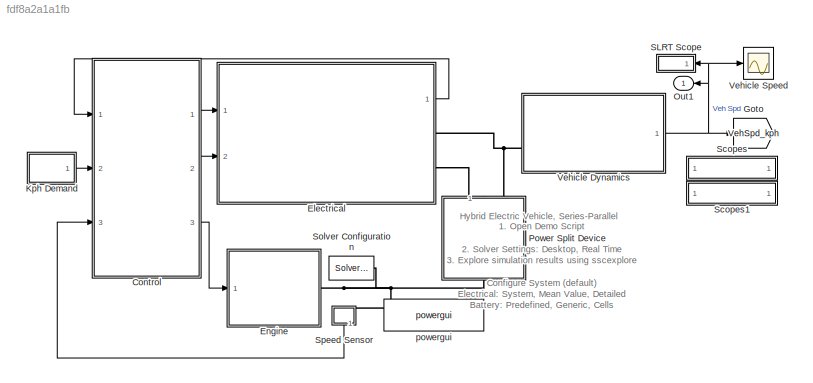
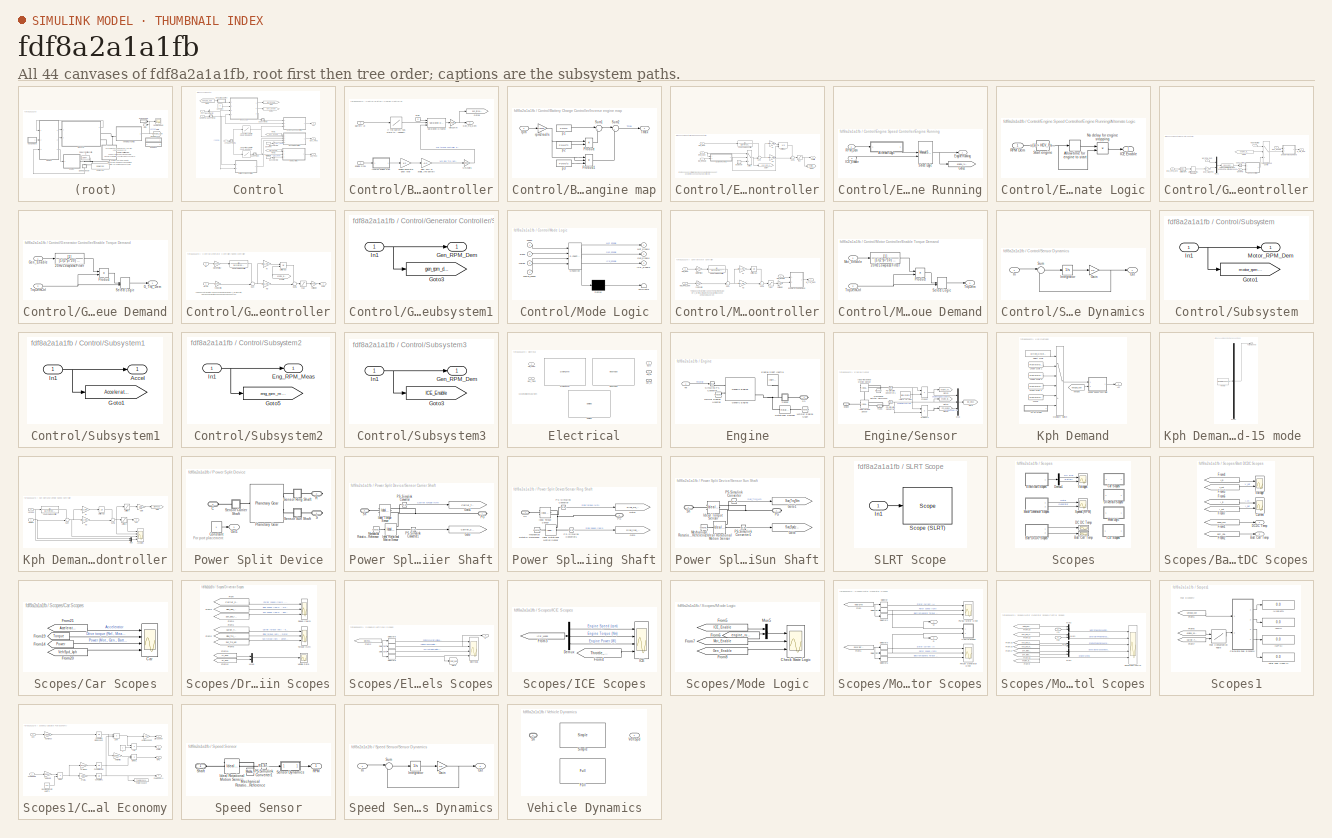
[diagram: thumbnail index - all 44 canvases of the model, root first then tree order]
MODEL slx_fdf8a2a1a1fb
KIND model
CONFIG AbsTol = auto
CONFIG EnableMultiTasking = on
CONFIG FixedStep = auto
CONFIG InitFcn = Configure_HEV_Simulation
CONFIG MaxStep = Ts
CONFIG MinStep = auto
CONFIG PostLoadFcn = warning off Simulink:Engine:UsingDefaultMaxStepSize\nwarning off Simulink:blocks:MatchingGotoNotFound\nwarning off Simulink:blocks:MatchingFromNotFound\nwarning off Simulink:blocks:TDelayBufferTooSmall\nwarning off Simulink:SL_SaveWithParameterizedLinks_Warning\nwarning off Simulink:SL_TDelayBufferTooSmall\nwarning off Simulink:SL_OutputNotConnected\nwarning off Simulink:SL_SaveWithDisabledLinks_Warning\n...<+1410ch>
CONFIG PreLoadFcn = load UrbanCycle1\nload UrbanCycle2\nload UrbanCycle3\nload UrbanCycle4\nload UrbanCycle5\n\nassignin('base','decimation',1)\nPbatt = 21e3;\nVbatt =100;\nTs = 6e-5;   % time step\n\nDrive_Cycle_Num = 1;\nwarning off Simulink:Commands:LoadMdlParameterizedLink\n\n\n
CONFIG RelTol = 1e-3
CONFIG SampleTimeConstraint = Unconstrained
CONFIG Solver = ode23t
CONFIG SolverName = ode23t
CONFIG StartFcn = tic;
CONFIG StartTime = 0.0
CONFIG StopFcn = Elapsed_Sim_Time = toc; disp(['Elapsed time for ' bdroot ' = ' num2str(Elapsed_Sim_Time)])
CONFIG StopTime = 14
WORKSPACE source: mxarray member
WORKSPACE guiH = 18054.0001221
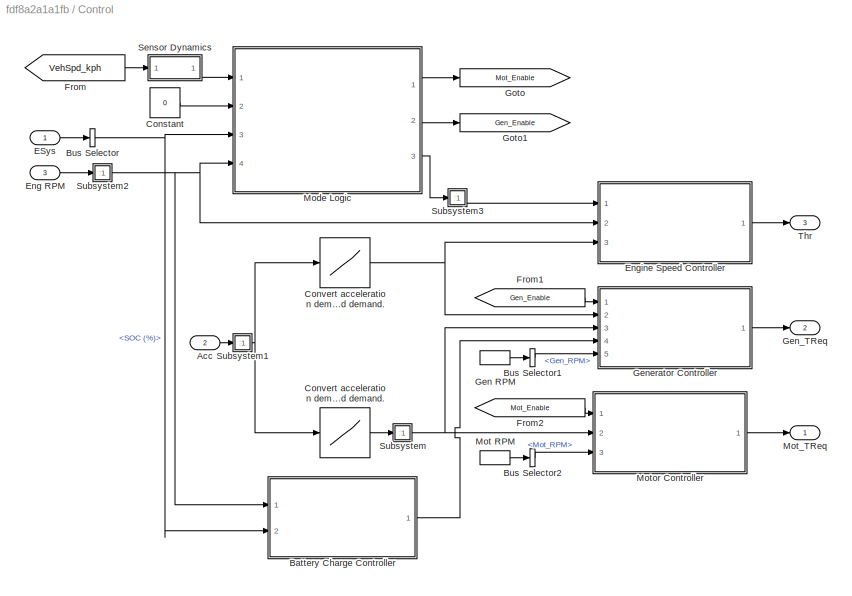
BLOCK [SubSystem] Control
  Ports = [3, 3]
  RequestExecContextInheritance = off
BLOCK [Inport] Control/Acc
  Port = 2
BLOCK [SubSystem] Control/Battery Charge Controller
  Ports = [2, 1]
  RequestExecContextInheritance = off
BLOCK [Gain] Control/Battery Charge Controller/Allow 20% of available torque to be used to charge the battery
  Gain = -0.2
BLOCK [Inport] Control/Battery Charge Controller/Battery Ah
  Port = 2
BLOCK [Inport] Control/Battery Charge Controller/Engine RPM
BLOCK [Gain] Control/Battery Charge Controller/Engine-generator gear ratio
  Gain = 1/2
BLOCK [Outport] Control/Battery Charge Controller/Gen_Trq_Dem
  VectorParamsAs1DForOutWhenUnconnected = off
BLOCK [Goto] Control/Battery Charge Controller/Goto6
  GotoTag = gen_torque_dem
  TagVisibility = global
BLOCK [Lookup] Control/Battery Charge Controller/If the battery has more than 100% rated capacity, then no generation is required. Linearly ramp to using 20% of engine torque for charging between 50% capacity and 100% capacity.
  InputValues = [0 50 100 150]
  SaturateOnIntegerOverflow = off
  Table = [-5 -5 0 0]
BLOCK [SubSystem] Control/Battery Charge Controller/Inverse engine map
  Ports = [1, 1]
  RequestExecContextInheritance = off
BLOCK [Product] Control/Battery Charge Controller/Inverse engine map/Product
  InputSameDT = on
  OutDataTypeStr = Inherit: Same as first input
  Ports = [2, 1]
  SaturateOnIntegerOverflow = on
BLOCK [Product] Control/Battery Charge Controller/Inverse engine map/Product1
  InputSameDT = on
  Inputs = 3
  OutDataTypeStr = Inherit: Same as first input
  Ports = [3, 1]
  SaturateOnIntegerOverflow = on
BLOCK [Sum] Control/Battery Charge Controller/Inverse engine map/Sum1
  InputSameDT = on
  Inputs = |++
  OutDataTypeStr = Inherit: Same as first input
  Ports = [2, 1]
  SaturateOnIntegerOverflow = on
BLOCK [Sum] Control/Battery Charge Controller/Inverse engine map/Sum2
  InputSameDT = on
  Inputs = |+-
  OutDataTypeStr = Inherit: Same as first input
  Ports = [2, 1]
  SaturateOnIntegerOverflow = on
BLOCK [Outport] Control/Battery Charge Controller/Inverse engine map/Tmax
  VectorParamsAs1DForOutWhenUnconnected = off
BLOCK [Constant] Control/Battery Charge Controller/Inverse engine map/p1
  Value = P0/w0
BLOCK [Constant] Control/Battery Charge Controller/Inverse engine map/p2
  Value = P0/w0^2
BLOCK [Constant] Control/Battery Charge Controller/Inverse engine map/p3
  Value = P0/w0^3
BLOCK [Inport] Control/Battery Charge Controller/Inverse engine map/rpm
BLOCK [Gain] Control/Battery Charge Controller/Inverse engine map/rpm2rad//s
  Gain = 2*pi/60
  OutDataTypeStr = Inherit: Same as input
  ParamDataTypeStr = Inherit: Same as input
  SaturateOnIntegerOverflow = on
BLOCK [Constant] Control/Battery Charge Controller/Max
  NameLocation = top
  Value = 5
BLOCK [Gain] Control/Battery Charge Controller/Nm2Volts
  Gain = 5/400
BLOCK [Reference] Control/Battery Charge Controller/Saturation Dynamic  REF=simulink/Discontinuities/Saturation
Dynamic
  Ports = [3, 1]
  SourceBlock = simulink/Discontinuities/Saturation\nDynamic
  SourceProductBaseCode = SL
  SourceType = Saturation Dynamic
BLOCK [Gain] Control/Battery Charge Controller/Volts2Nm
  Gain = 400/5
BLOCK [BusSelector] Control/Bus Selector
  OutputSignals = Batt.SOC (%)
  Ports = [1, 1]
BLOCK [BusSelector] Control/Bus Selector1
  OutputSignals = Gen_RPM
  Ports = [1, 1]
BLOCK [BusSelector] Control/Bus Selector2
  OutputSignals = Mot_RPM
  Ports = [1, 1]
BLOCK [Constant] Control/Constant
  Value = 0
BLOCK [Lookup] Control/Convert acceleration demand to engine speed demand.
  InputValues = [0 0.1 1]
  SaturateOnIntegerOverflow = off
  Table = [0 800 4000]
BLOCK [Lookup] Control/Convert acceleration demand to motor speed demand.
  InputValues = [0 1]
  NameLocation = top
  SaturateOnIntegerOverflow = off
  Table = [0 2500]
BLOCK [Inport] Control/ESys 
BLOCK [Inport] Control/Eng RPM
  Port = 3
BLOCK [SubSystem] Control/Engine Speed Controller
  Ports = [3, 1]
  RequestExecContextInheritance = off
BLOCK [TransferFcn] Control/Engine Speed Controller/20Hz Lowpass Filter
  Denominator = [1/(2*pi*20) 1]
BLOCK [SubSystem] Control/Engine Speed Controller/Engine Running
  Ports = [2, 1]
  RequestExecContextInheritance = off
BLOCK [SubSystem] Control/Engine Speed Controller/Engine Running/Alternate Logic
  Ports = [1, 1]
  RequestExecContextInheritance = off
BLOCK [TransportDelay] Control/Engine Speed Controller/Engine Running/Alternate Logic/Allow time for engine to start
  Ports = [1, 1]
BLOCK [Outport] Control/Engine Speed Controller/Engine Running/Alternate Logic/ICE Enable
  VectorParamsAs1DForOutWhenUnconnected = off
BLOCK [Product] Control/Engine Speed Controller/Engine Running/Alternate Logic/No delay for engine stopping
  Ports = [2, 1]
  RndMeth = Zero
BLOCK [Inport] Control/Engine Speed Controller/Engine Running/Alternate Logic/RPM Dem
BLOCK [Fcn] Control/Engine Speed Controller/Engine Running/Alternate Logic/Start engine
  Expr = u(1) > HEV_Param.Control.Engine_Start_RPM
BLOCK [Outport] Control/Engine Speed Controller/Engine Running/Engine Running
  VectorParamsAs1DForOutWhenUnconnected = off
BLOCK [Goto] Control/Engine Speed Controller/Engine Running/Goto2
  GotoTag = engine_running
  TagVisibility = global
BLOCK [Inport] Control/Engine Speed Controller/Engine Running/ICE_Enable
  Port = 2
BLOCK [Inport] Control/Engine Speed Controller/Engine Running/RPM_Dem
  NameLocation = top
BLOCK [ManualSwitch] Control/Engine Speed Controller/Engine Running/Select Logic
BLOCK [Constant] Control/Engine Speed Controller/Engine off
  Value = 0
BLOCK [Goto] Control/Engine Speed Controller/Goto4
  GotoTag = eng_rpm_dem
  TagVisibility = global
BLOCK [Goto] Control/Engine Speed Controller/Goto6
  GotoTag = Throttle_Demand
  TagVisibility = global
BLOCK [Inport] Control/Engine Speed Controller/ICE_Enable
BLOCK [Inport] Control/Engine Speed Controller/ICE_RPM
  Port = 2
BLOCK [Gain] Control/Engine Speed Controller/Ki
  Gain = HEV_Param.Control.ICE.Ki
BLOCK [Gain] Control/Engine Speed Controller/Kp
  Gain = HEV_Param.Control.ICE.Kp
BLOCK [Integrator] Control/Engine Speed Controller/Limits [0,1]
  ExternalReset = either
  LimitOutput = on
  LowerSaturationLimit = 0
  Ports = [2, 1]
  UpperSaturationLimit = 1
BLOCK [Inport] Control/Engine Speed Controller/RPM_Dem
  Port = 3
BLOCK [Sum] Control/Engine Speed Controller/Sum
  Inputs = -+|
  Ports = [2, 1]
BLOCK [Sum] Control/Engine Speed Controller/Sum1
  Inputs = ++|
  Ports = [2, 1]
BLOCK [Switch] Control/Engine Speed Controller/Switch
  InputSameDT = off
  SaturateOnIntegerOverflow = off
  Threshold = 0.5
BLOCK [Outport] Control/Engine Speed Controller/Throttle
  VectorParamsAs1DForOutWhenUnconnected = off
BLOCK [Saturate] Control/Engine Speed Controller/[0,1]
  LowerLimit = 0
  UpperLimit = 1
BLOCK [From] Control/From
  GotoTag = VehSpd_kph
  TagVisibility = global
BLOCK [From] Control/From1
  GotoTag = Gen_Enable
  TagVisibility = global
BLOCK [From] Control/From2
  GotoTag = Mot_Enable
  TagVisibility = global
BLOCK [InportShadow] Control/Gen RPM
BLOCK [Outport] Control/Gen_TReq
  Port = 2
  VectorParamsAs1DForOutWhenUnconnected = off
BLOCK [SubSystem] Control/Generator Controller
  Ports = [5, 1]
  RequestExecContextInheritance = off
BLOCK [SubSystem] Control/Generator Controller/Enable Torque Demand
  Ports = [2, 1]
  RequestExecContextInheritance = off
BLOCK [TransferFcn] Control/Generator Controller/Enable Torque Demand/20Hz Lowpass Filter
  Denominator = [1/(2*pi*20) 1]
BLOCK [Outport] Control/Generator Controller/Enable Torque Demand/G_Trq_Dem
  VectorParamsAs1DForOutWhenUnconnected = off
BLOCK [Inport] Control/Generator Controller/Enable Torque Demand/Gen_Enable
BLOCK [Product] Control/Generator Controller/Enable Torque Demand/Product
  Ports = [2, 1]
  RndMeth = Zero
BLOCK [ManualSwitch] Control/Generator Controller/Enable Torque Demand/Select Logic
  CurrentSetting = 0
BLOCK [Inport] Control/Generator Controller/Enable Torque Demand/TrqDemCtrl
  Port = 2
BLOCK [Inport] Control/Generator Controller/Eng_RPM_Dem
  Port = 2
BLOCK [Gain] Control/Generator Controller/Eng_Start_RPM
  Gain = HEV_Param.Control.Engine_Start_RPM
BLOCK [From] Control/Generator Controller/From5
  GotoTag = engine_running
  TagVisibility = global
BLOCK [Outport] Control/Generator Controller/G_Trq_Dem
  VectorParamsAs1DForOutWhenUnconnected = off
BLOCK [Inport] Control/Generator Controller/Gen RPM
  Port = 5
BLOCK [Inport] Control/Generator Controller/Gen_Enable
  NameLocation = top
BLOCK [RateLimiter] Control/Generator Controller/Limit to 800rpm in 1 second
  SampleTimeMode = inherited
BLOCK [Inport] Control/Generator Controller/Mot_RPM_Dem
  Port = 3
BLOCK [Mux] Control/Generator Controller/Mux1
  DisplayOption = bar
  Inputs = 2
  Ports = [2, 1]
BLOCK [Fcn] Control/Generator Controller/Set generator RPM so that engine RPM is controlled to zero or the idle speed
  Expr = -2*u(1)+3*u(2)
BLOCK [SubSystem] Control/Generator Controller/Speed controller
  Ports = [2, 1]
  RequestExecContextInheritance = off
BLOCK [TransferFcn] Control/Generator Controller/Speed controller/20Hz Lowpass Filter
  Denominator = [1/(2*pi*20) 1]
BLOCK [From] Control/Generator Controller/Speed controller/From5
  GotoTag = engine_running
  NameLocation = top
  TagVisibility = global
BLOCK [Gain] Control/Generator Controller/Speed controller/Gen RPM to V
  Gain = 5/10000
BLOCK [Gain] Control/Generator Controller/Speed controller/Ki
  Gain = HEV_Param.Control.Gen.Ki
BLOCK [Gain] Control/Generator Controller/Speed controller/Kp
  Gain = HEV_Param.Control.Gen.Kp
BLOCK [Integrator] Control/Generator Controller/Speed controller/Limits [-5,5]
  ExternalReset = either
  LimitOutput = on
  LowerSaturationLimit = -5
  Ports = [2, 1]
  UpperSaturationLimit = 5
BLOCK [Sum] Control/Generator Controller/Speed controller/Sum
  Inputs = -+|
  Ports = [2, 1]
BLOCK [Sum] Control/Generator Controller/Speed controller/Sum1
  Inputs = ++|
  Ports = [2, 1]
BLOCK [Outport] Control/Generator Controller/Speed controller/Tref
  VectorParamsAs1DForOutWhenUnconnected = off
BLOCK [Gain] Control/Generator Controller/Speed controller/Volts//Nm
  Gain = 400/5
BLOCK [Inport] Control/Generator Controller/Speed controller/W
  Port = 2
BLOCK [Inport] Control/Generator Controller/Speed controller/Wref
BLOCK [Saturate] Control/Generator Controller/Speed controller/[-5,5]
  LowerLimit = -5
  UpperLimit = 5
BLOCK [Gain] Control/Generator Controller/Speed controller/rpm2volts
  Gain = 5/10000
BLOCK [Fcn] Control/Generator Controller/Start Engine
  Expr = u(1) > HEV_Param.Control.Engine_Start_RPM
  NameLocation = top
BLOCK [SubSystem] Control/Generator Controller/Subsystem1
  Ports = [1, 1]
  RequestExecContextInheritance = off
BLOCK [Outport] Control/Generator Controller/Subsystem1/Gen_RPM_Dem
  VectorParamsAs1DForOutWhenUnconnected = off
BLOCK [Goto] Control/Generator Controller/Subsystem1/Goto3
  GotoTag = gen_rpm_dem
  TagVisibility = global
BLOCK [Inport] Control/Generator Controller/Subsystem1/In1
BLOCK [Switch] Control/Generator Controller/Torque or Speed Control
  InputSameDT = off
  SaturateOnIntegerOverflow = off
  Threshold = 0.5
BLOCK [Inport] Control/Generator Controller/Trq Dem Battery
  Port = 4
BLOCK [Goto] Control/Goto
  GotoTag = Mot_Enable
  TagVisibility = global
BLOCK [Goto] Control/Goto1
  GotoTag = Gen_Enable
  TagVisibility = global
BLOCK [SubSystem] Control/Mode Logic
  ErrorFcn = Stateflow.Translate.translate
  PermitHierarchicalResolution = ExplicitOnly
  Ports = [4, 3]
  RequestExecContextInheritance = off
  SFBlockType = Chart
  TreatAsAtomicUnit = on
BLOCK [Demux] Control/Mode Logic/ Demux 
  Outputs = 1
  Ports = [1, 1]
BLOCK [S-Function] Control/Mode Logic/ SFunction 
  EnableBusSupport = on
  FunctionName = sf_sfun
  PortCounts = [4 4]
  Ports = [4, 4]
  SFcnIsStateOwnerBlock = off
  SFunctionDeploymentMode = off
  Tag = Stateflow S-Function 2
BLOCK [Terminator] Control/Mode Logic/ Terminator 
BLOCK [Outport] Control/Mode Logic/Gen_Enable
  Port = 2
  VectorParamsAs1DForOutWhenUnconnected = off
BLOCK [Outport] Control/Mode Logic/ICE_Enable
  Port = 3
  VectorParamsAs1DForOutWhenUnconnected = off
BLOCK [Outport] Control/Mode Logic/Mot_Enable
  VectorParamsAs1DForOutWhenUnconnected = off
BLOCK [Inport] Control/Mode Logic/brake
  Port = 2
BLOCK [Inport] Control/Mode Logic/charge
  Port = 3
BLOCK [Inport] Control/Mode Logic/engine_speed
  Port = 4
BLOCK [Inport] Control/Mode Logic/speed
BLOCK [InportShadow] Control/Mot RPM
BLOCK [Outport] Control/Mot_TReq
  VectorParamsAs1DForOutWhenUnconnected = off
BLOCK [SubSystem] Control/Motor Controller
  Ports = [3, 1]
  RequestExecContextInheritance = off
BLOCK [TransferFcn] Control/Motor Controller/20Hz Lowpass Filter
  Denominator = [1/(2*pi*20) 1]
BLOCK [SubSystem] Control/Motor Controller/Enable Torque Demand
  Ports = [2, 1]
  RequestExecContextInheritance = off
BLOCK [TransferFcn] Control/Motor Controller/Enable Torque Demand/20Hz Lowpass Filter
  Denominator = [1/(2*pi*10) 1]
BLOCK [Inport] Control/Motor Controller/Enable Torque Demand/Mot_Enable
BLOCK [Product] Control/Motor Controller/Enable Torque Demand/Product
  Ports = [2, 1]
  RndMeth = Zero
BLOCK [ManualSwitch] Control/Motor Controller/Enable Torque Demand/Select Logic
  CurrentSetting = 0
BLOCK [Outport] Control/Motor Controller/Enable Torque Demand/TrqDem
  VectorParamsAs1DForOutWhenUnconnected = off
BLOCK [Inport] Control/Motor Controller/Enable Torque Demand/TrqDemCtrl
  Port = 2
BLOCK [Gain] Control/Motor Controller/Ki
  Gain = HEV_Param.Control.Mot.Ki
BLOCK [Gain] Control/Motor Controller/Kp
  Gain = HEV_Param.Control.Mot.Kp
BLOCK [Integrator] Control/Motor Controller/Limits [-5,5]
  LimitOutput = on
  LowerSaturationLimit = -5
  Ports = [1, 1]
  UpperSaturationLimit = 5
BLOCK [Outport] Control/Motor Controller/M_Trq_Dem
  VectorParamsAs1DForOutWhenUnconnected = off
BLOCK [Gain] Control/Motor Controller/Mot RPM to V
  Gain = 5/6700
BLOCK [Inport] Control/Motor Controller/Mot_Enable
BLOCK [Inport] Control/Motor Controller/Mot_RPM
  Port = 3
BLOCK [Inport] Control/Motor Controller/Mot_RPM_Dem
  Port = 2
BLOCK [Sum] Control/Motor Controller/Sum
  Inputs = -+|
  Ports = [2, 1]
BLOCK [Sum] Control/Motor Controller/Sum1
  Inputs = ++|
  Ports = [2, 1]
BLOCK [Gain] Control/Motor Controller/Volts//Nm
  Gain = 400/5
BLOCK [Saturate] Control/Motor Controller/[-5,5]
  LowerLimit = -5
  UpperLimit = 5
BLOCK [Gain] Control/Motor Controller/rpm2volts
  Gain = 5/6500
BLOCK [SubSystem] Control/Sensor Dynamics
  NameLocation = top
  Ports = [1, 1]
  RequestExecContextInheritance = off
BLOCK [Gain] Control/Sensor Dynamics/Gain
  Gain = 1/b
BLOCK [Inport] Control/Sensor Dynamics/In
BLOCK [Integrator] Control/Sensor Dynamics/Integrator
  InitialCondition = x_initial
  Ports = [1, 1]
BLOCK [Outport] Control/Sensor Dynamics/Out
  VectorParamsAs1DForOutWhenUnconnected = off
BLOCK [Sum] Control/Sensor Dynamics/Sum
  InputSameDT = on
  Inputs = |+-
  OutDataTypeStr = Inherit: Same as first input
  Ports = [2, 1]
  SaturateOnIntegerOverflow = on
BLOCK [SubSystem] Control/Subsystem
  Ports = [1, 1]
  RequestExecContextInheritance = off
BLOCK [Goto] Control/Subsystem/Goto1
  GotoTag = motor_rpm_dem
  TagVisibility = global
BLOCK [Inport] Control/Subsystem/In1
BLOCK [Outport] Control/Subsystem/Motor_RPM_Dem
  VectorParamsAs1DForOutWhenUnconnected = off
BLOCK [SubSystem] Control/Subsystem1
  Ports = [1, 1]
  RequestExecContextInheritance = off
BLOCK [Outport] Control/Subsystem1/Accel
  VectorParamsAs1DForOutWhenUnconnected = off
BLOCK [Goto] Control/Subsystem1/Goto1
  GotoTag = Accelerator
  TagVisibility = global
BLOCK [Inport] Control/Subsystem1/In1
BLOCK [SubSystem] Control/Subsystem2
  Ports = [1, 1]
  RequestExecContextInheritance = off
BLOCK [Outport] Control/Subsystem2/Eng_RPM_Meas
  VectorParamsAs1DForOutWhenUnconnected = off
BLOCK [Goto] Control/Subsystem2/Goto5
  GotoTag = eng_rpm_meas
  TagVisibility = global
BLOCK [Inport] Control/Subsystem2/In1
BLOCK [SubSystem] Control/Subsystem3
  Ports = [1, 1]
  RequestExecContextInheritance = off
BLOCK [Outport] Control/Subsystem3/Gen_RPM_Dem
  VectorParamsAs1DForOutWhenUnconnected = off
BLOCK [Goto] Control/Subsystem3/Goto3
  GotoTag = ICE_Enable
  TagVisibility = global
BLOCK [Inport] Control/Subsystem3/In1
BLOCK [Outport] Control/Thr
  Port = 3
  VectorParamsAs1DForOutWhenUnconnected = off
BLOCK [SubSystem] Electrical
  AttributesFormatString = %<ActiveVariant>
  BlockChoice = System Level
  LabelModeActiveChoice = System_Level
  Ports = [2, 1, 0, 0, 0, 0, 2]
  RequestExecContextInheritance = off
  Variant = on
  VariantControlMode = Label
BLOCK [Reference] Electrical/Detailed  REF=HEV_Electrical_Lib/Detailed
  Ports = [2, 1, 0, 0, 0, 0, 2]
  SourceBlock = HEV_Electrical_Lib/Detailed
BLOCK [Outport] Electrical/ESys
  VectorParamsAs1DForOutWhenUnconnected = off
BLOCK [PMIOPort] Electrical/Gen_Sh
  Port = 2
  Side = Right
BLOCK [Inport] Electrical/Gen_TReq
  Port = 2
BLOCK [Reference] Electrical/Mean Value  REF=HEV_Electrical_Lib/Mean Value
  Ports = [2, 1, 0, 0, 0, 0, 2]
  SourceBlock = HEV_Electrical_Lib/Mean Value
BLOCK [PMIOPort] Electrical/Mot_Sh
  Side = Right
BLOCK [Inport] Electrical/Mot_TReq
BLOCK [Reference] Electrical/System Level  REF=HEV_Electrical_Lib/System Level
  Ports = [2, 1, 0, 0, 0, 0, 2]
  SourceBlock = HEV_Electrical_Lib/System Level
BLOCK [SubSystem] Engine
  Ports = [1, 0, 0, 0, 0, 0, 1]
  RequestExecContextInheritance = off
BLOCK [Reference] Engine/Engine Shaft Inertia  REF=fl_lib/Mechanical/Rotational Elements/Inertia
  NameLocation = right
  Ports = [0, 0, 0, 0, 0, 1]
  SourceBlock = fl_lib/Mechanical/Rotational Elements/Inertia
  SourceProductBaseCode = SS
  SourceType = Inertia
BLOCK [Reference] Engine/Generic Engine  REF=sdl_lib/Engines/Generic Engine
  Ports = [0, 0, 0, 0, 0, 2, 3]
  SourceBlock = sdl_lib/Engines/Generic Engine
  SourceProductBaseCode = LD
  SourceType = Generic Engine
BLOCK [Reference] Engine/MRRef Engine Housing  REF=fl_lib/Mechanical/Rotational Elements/Mechanical
Rotational Reference
  Ports = [0, 0, 0, 0, 0, 1]
  SourceBlock = fl_lib/Mechanical/Rotational Elements/Mechanical\nRotational Reference
  SourceProductBaseCode = SS
  SourceType = Mechanical\nRotational Reference
BLOCK [Reference] Engine/MRRef Engine Shaft  REF=fl_lib/Mechanical/Rotational Elements/Mechanical
Rotational Reference
  Ports = [0, 0, 0, 0, 0, 1]
  SourceBlock = fl_lib/Mechanical/Rotational Elements/Mechanical\nRotational Reference
  SourceProductBaseCode = SS
  SourceType = Mechanical\nRotational Reference
BLOCK [Reference] Engine/Rotational Damper  REF=fl_lib/Mechanical/Rotational Elements/Rotational Damper
  Ports = [0, 0, 0, 0, 0, 1, 1]
  SourceBlock = fl_lib/Mechanical/Rotational Elements/Rotational Damper
  SourceProductBaseCode = SS
  SourceType = Rotational Damper
BLOCK [SubSystem] Engine/Sensor
  Ports = [0, 0, 0, 0, 0, 1, 1]
  RequestExecContextInheritance = off
BLOCK [PMIOPort] Engine/Sensor/Engine
  Side = Left
BLOCK [Goto] Engine/Sensor/Goto
  GotoTag = ICE_Meas
  TagVisibility = global
BLOCK [Goto] Engine/Sensor/Goto1
  GotoTag = Pm_engine
  TagVisibility = global
BLOCK [Goto] Engine/Sensor/Goto2
  GotoTag = engine_torque
  TagVisibility = global
BLOCK [Goto] Engine/Sensor/Goto3
  GotoTag = engine_speed
  TagVisibility = global
BLOCK [Reference] Engine/Sensor/Ideal Rotational Motion Sensor  REF=fl_lib/Mechanical/Mechanical Sensors/Ideal Rotational
Motion Sensor
  Ports = [0, 0, 0, 0, 0, 1, 3]
  SourceBlock = fl_lib/Mechanical/Mechanical Sensors/Ideal Rotational\nMotion Sensor
  SourceProductBaseCode = SS
  SourceType = Ideal Rotational\nMotion Sensor
BLOCK [Reference] Engine/Sensor/Ideal Torque Sensor  REF=fl_lib/Mechanical/Mechanical Sensors/Ideal Torque Sensor
  Ports = [0, 0, 0, 0, 0, 1, 2]
  SourceBlock = fl_lib/Mechanical/Mechanical Sensors/Ideal Torque Sensor
  SourceProductBaseCode = SS
  SourceType = Ideal Torque Sensor
BLOCK [Reference] Engine/Sensor/Mechanical Rotational Reference  REF=fl_lib/Mechanical/Rotational Elements/Mechanical
Rotational Reference
  NameLocation = top
  Ports = [0, 0, 0, 0, 0, 1]
  SourceBlock = fl_lib/Mechanical/Rotational Elements/Mechanical\nRotational Reference
  SourceProductBaseCode = SS
  SourceType = Mechanical\nRotational Reference
BLOCK [Mux] Engine/Sensor/Mux
  DisplayOption = bar
  Inputs = 3
  Ports = [3, 1]
BLOCK [Reference] Engine/Sensor/PS-Simulink Converter  REF=nesl_utility/PS-Simulink
Converter
  Ports = [0, 1, 0, 0, 0, 1]
  SourceBlock = nesl_utility/PS-Simulink\nConverter
  SourceProductBaseCode = SS
  SourceType = PS-Simulink\nConverter
BLOCK [Reference] Engine/Sensor/PS-Simulink Converter1  REF=nesl_utility/PS-Simulink
Converter
  Ports = [0, 1, 0, 0, 0, 1]
  SourceBlock = nesl_utility/PS-Simulink\nConverter
  SourceProductBaseCode = SS
  SourceType = PS-Simulink\nConverter
BLOCK [Product] Engine/Sensor/Product
  Ports = [2, 1]
  RndMeth = Zero
BLOCK [Product] Engine/Sensor/Product1
  Ports = [2, 1]
  RndMeth = Zero
BLOCK [PMIOPort] Engine/Sensor/Trans
  Port = 2
  Side = Right
BLOCK [Constant] Engine/Sensor/rad//s to rpm
  Value = 60/(2*pi)
BLOCK [PMIOPort] Engine/Sh
  NameLocation = top
  Side = Right
BLOCK [Reference] Engine/Simulink-PS Converter  REF=nesl_utility/Simulink-PS
Converter
  Ports = [1, 0, 0, 0, 0, 0, 1]
  SourceBlock = nesl_utility/Simulink-PS\nConverter
  SourceProductBaseCode = SS
  SourceType = Simulink-PS\nConverter
BLOCK [Inport] Engine/Thr
BLOCK [Goto] Goto
  GotoTag = VehSpd_kph
  TagVisibility = global
BLOCK [SubSystem] Kph Demand
  Ports = [0, 1]
  RequestExecContextInheritance = off
BLOCK [SubSystem] Kph Demand/10-15 mode 
  ClipboardFcn = sigbuilder_block('clipboard');
  CloseFcn = sigbuilder_block('close');
  ContinueFcn = sigbuilder_block('continue')
  CopyFcn = sigbuilder_block('copy');
  DeleteFcn = sigbuilder_block('delete');
  LoadFcn = sigbuilder_block('load');
  MaskHideContents = on
  ModelCloseFcn = sigbuilder_block('modelClose');
  NameChangeFcn = sigbuilder_block('namechange');
  OpenFcn = sigbuilder_block('open',[561.6 178.2 550.8 399 ]);
  PauseFcn = sigbuilder_block('pause')
  Ports = [0, 1]
  PreSaveFcn = sigbuilder_block('preSave');
  RequestExecContextInheritance = off
  StartFcn = sigbuilder_block('start');
  StopFcn = sigbuilder_block('stop');
  Tag = STV Subsys
BLOCK [Demux] Kph Demand/10-15 mode /Demux
  DisplayOption = none
  Outputs = 1
  Ports = [1, 1]
  Tag = STV Demux
BLOCK [FromWorkspace] Kph Demand/10-15 mode /FromWs
  Tag = STV FromWs
  VariableName = tuvar
BLOCK [Outport] Kph Demand/10-15 mode /Target speed
  Tag = STV Outport
  VectorParamsAs1DForOutWhenUnconnected = off
BLOCK [Outport] Kph Demand/Acc
  VectorParamsAs1DForOutWhenUnconnected = off
BLOCK [FromWorkspace] Kph Demand/FTP75
  VariableName = [UrbanCycle4.time UrbanCycle4.SpdKph]
BLOCK [MultiPortSwitch] Kph Demand/Multiport Switch
  InputSameDT = off
  Inputs = 5
  Ports = [6, 1]
  SaturateOnIntegerOverflow = off
BLOCK [Constant] Kph Demand/Select Cycle
  Value = Drive_Cycle_Num
BLOCK [FromWorkspace] Kph Demand/Urban Cycle 1
  VariableName = [UrbanCycle1.time UrbanCycle1.SpdKph]
BLOCK [FromWorkspace] Kph Demand/Urban Cycle 2
  VariableName = [UrbanCycle2.time UrbanCycle2.SpdKph]
BLOCK [FromWorkspace] Kph Demand/Urban Cycle 3
  VariableName = [UrbanCycle3.time UrbanCycle3.SpdKph]
BLOCK [From] Kph Demand/VehSpd
  GotoTag = VehSpd_kph
  TagVisibility = global
BLOCK [SubSystem] Kph Demand/Vehicle Speed Controller
  Ports = [2, 1]
  RequestExecContextInheritance = off
BLOCK [TransferFcn] Kph Demand/Vehicle Speed Controller/20Hz Lowpass Filter
  Denominator = [1/(2*pi*20) 1]
BLOCK [Outport] Kph Demand/Vehicle Speed Controller/Acc
  VectorParamsAs1DForOutWhenUnconnected = off
BLOCK [Scope] Kph Demand/Vehicle Speed Controller/Accel Ctrl
  Floating = off
  NumInputPorts = 4
  Ports = [4]
  ScopeSpecificationString = Simulink.scopes.TimeScopeBlockCfg('CurrentConfiguration', extmgr.ConfigurationSet(extmgr.Configuration('Core','General UI',true),extmgr.Configuration('Core','Source UI',true),extmgr.Configuration('Sources','WiredSimulink',true,'DataLoggingVariableName','ScopeData11','DataLoggingSaveFormat','StructureWithTime','DataLoggingMaxPoints','100','DataLoggingDecimation','decimation','DataLoggingDecimateDat...<+3692ch>
BLOCK [Gain] Kph Demand/Vehicle Speed Controller/Gain
  Gain = 200
BLOCK [Goto] Kph Demand/Vehicle Speed Controller/Goto
  GotoTag = BrkPedal
  TagVisibility = global
BLOCK [Gain] Kph Demand/Vehicle Speed Controller/Ki
  Gain = HEV_Param.Control.Veh_Spd.Ki
BLOCK [Gain] Kph Demand/Vehicle Speed Controller/Kp
  Gain = HEV_Param.Control.Veh_Spd.Kp
BLOCK [Saturate] Kph Demand/Vehicle Speed Controller/Limit Acc
  LowerLimit = 0
  UpperLimit = 1
BLOCK [Saturate] Kph Demand/Vehicle Speed Controller/Limit Brk
  LowerLimit = -inf
  UpperLimit = 0
BLOCK [Integrator] Kph Demand/Vehicle Speed Controller/Limits [-5,5]
  LimitOutput = on
  LowerSaturationLimit = -5
  Ports = [1, 1]
  UpperSaturationLimit = 5
BLOCK [Mux] Kph Demand/Vehicle Speed Controller/Mux
  DisplayOption = bar
  Inputs = 2
  Ports = [2, 1]
BLOCK [Inport] Kph Demand/Vehicle Speed Controller/Ref Spd
BLOCK [Sum] Kph Demand/Vehicle Speed Controller/Sum
  Inputs = -+|
  Ports = [2, 1]
BLOCK [Sum] Kph Demand/Vehicle Speed Controller/Sum1
  Inputs = ++|
  Ports = [2, 1]
BLOCK [Inport] Kph Demand/Vehicle Speed Controller/Veh Spd
  Port = 2
BLOCK [Outport] Out1
  VectorParamsAs1DForOutWhenUnconnected = off
BLOCK [SubSystem] Power Split Device
  NameLocation = left
  Ports = [0, 1, 0, 0, 0, 1, 2]
  RequestExecContextInheritance = off
BLOCK [PMIOPort] Power Split Device/C
  Port = 3
  Side = Left
BLOCK [Constant] Power Split Device/Constant
BLOCK [Outport] Power Split Device/Out1
  VectorParamsAs1DForOutWhenUnconnected = off
BLOCK [Reference] Power Split Device/Planetary Gear  REF=sdl_lib/Gears/Planetary Gear
  Ports = [0, 0, 0, 0, 0, 1, 2]
  SourceBlock = sdl_lib/Gears/Planetary Gear
  SourceProductBaseCode = LD
  SourceType = Planetary Gear
BLOCK [PMIOPort] Power Split Device/R
  Port = 2
  Side = Right
BLOCK [PMIOPort] Power Split Device/S
  Side = Right
BLOCK [SubSystem] Power Split Device/Sensor Carrier Shaft
  Ports = [0, 0, 0, 0, 0, 1, 1]
  RequestExecContextInheritance = off
BLOCK [Goto] Power Split Device/Sensor Carrier Shaft/Goto
  GotoTag = Carrier_Spd_radps
  TagVisibility = global
BLOCK [Goto] Power Split Device/Sensor Carrier Shaft/Goto1
  GotoTag = Carrier_Trq_Nm
  TagVisibility = global
BLOCK [Reference] Power Split Device/Sensor Carrier Shaft/Ideal Rotational Motion Sensor  REF=fl_lib/Mechanical/Mechanical Sensors/Ideal Rotational
Motion Sensor
  Ports = [0, 0, 0, 0, 0, 1, 3]
  SourceBlock = fl_lib/Mechanical/Mechanical Sensors/Ideal Rotational\nMotion Sensor
  SourceProductBaseCode = SS
  SourceType = Ideal Rotational\nMotion Sensor
BLOCK [Reference] Power Split Device/Sensor Carrier Shaft/Ideal Torque Sensor  REF=fl_lib/Mechanical/Mechanical Sensors/Ideal Torque Sensor
  Ports = [0, 0, 0, 0, 0, 1, 2]
  SourceBlock = fl_lib/Mechanical/Mechanical Sensors/Ideal Torque Sensor
  SourceProductBaseCode = SS
  SourceType = Ideal Torque Sensor
BLOCK [Reference] Power Split Device/Sensor Carrier Shaft/Mechanical Rotational Reference  REF=fl_lib/Mechanical/Rotational Elements/Mechanical
Rotational Reference
  Ports = [0, 0, 0, 0, 0, 1]
  SourceBlock = fl_lib/Mechanical/Rotational Elements/Mechanical\nRotational Reference
  SourceProductBaseCode = SS
  SourceType = Mechanical\nRotational Reference
BLOCK [PMIOPort] Power Split Device/Sensor Carrier Shaft/PG
  Side = Right
BLOCK [Reference] Power Split Device/Sensor Carrier Shaft/PS-Simulink Converter  REF=nesl_utility/PS-Simulink
Converter
  Ports = [0, 1, 0, 0, 0, 1]
  SourceBlock = nesl_utility/PS-Simulink\nConverter
  SourceProductBaseCode = SS
  SourceType = PS-Simulink\nConverter
BLOCK [Reference] Power Split Device/Sensor Carrier Shaft/PS-Simulink Converter1  REF=nesl_utility/PS-Simulink
Converter
  Ports = [0, 1, 0, 0, 0, 1]
  SourceBlock = nesl_utility/PS-Simulink\nConverter
  SourceProductBaseCode = SS
  SourceType = PS-Simulink\nConverter
BLOCK [PMIOPort] Power Split Device/Sensor Carrier Shaft/Sh
  Port = 2
  Side = Left
BLOCK [SubSystem] Power Split Device/Sensor Ring Shaft
  NameLocation = top
  Ports = [0, 0, 0, 0, 0, 1, 1]
  RequestExecContextInheritance = off
BLOCK [Goto] Power Split Device/Sensor Ring Shaft/Goto
  GotoTag = Ring_Spd_radps
  TagVisibility = global
BLOCK [Goto] Power Split Device/Sensor Ring Shaft/Goto1
  GotoTag = Ring_Trq_Nm
  TagVisibility = global
BLOCK [Reference] Power Split Device/Sensor Ring Shaft/Ideal Rotational Motion Sensor  REF=fl_lib/Mechanical/Mechanical Sensors/Ideal Rotational
Motion Sensor
  Ports = [0, 0, 0, 0, 0, 1, 3]
  SourceBlock = fl_lib/Mechanical/Mechanical Sensors/Ideal Rotational\nMotion Sensor
  SourceProductBaseCode = SS
  SourceType = Ideal Rotational\nMotion Sensor
BLOCK [Reference] Power Split Device/Sensor Ring Shaft/Ideal Torque Sensor  REF=fl_lib/Mechanical/Mechanical Sensors/Ideal Torque Sensor
  Ports = [0, 0, 0, 0, 0, 1, 2]
  SourceBlock = fl_lib/Mechanical/Mechanical Sensors/Ideal Torque Sensor
  SourceProductBaseCode = SS
  SourceType = Ideal Torque Sensor
BLOCK [Reference] Power Split Device/Sensor Ring Shaft/Mechanical Rotational Reference  REF=fl_lib/Mechanical/Rotational Elements/Mechanical
Rotational Reference
  Ports = [0, 0, 0, 0, 0, 1]
  SourceBlock = fl_lib/Mechanical/Rotational Elements/Mechanical\nRotational Reference
  SourceProductBaseCode = SS
  SourceType = Mechanical\nRotational Reference
BLOCK [PMIOPort] Power Split Device/Sensor Ring Shaft/PG
  Side = Right
BLOCK [Reference] Power Split Device/Sensor Ring Shaft/PS-Simulink Converter  REF=nesl_utility/PS-Simulink
Converter
  Ports = [0, 1, 0, 0, 0, 1]
  SourceBlock = nesl_utility/PS-Simulink\nConverter
  SourceProductBaseCode = SS
  SourceType = PS-Simulink\nConverter
BLOCK [Reference] Power Split Device/Sensor Ring Shaft/PS-Simulink Converter1  REF=nesl_utility/PS-Simulink
Converter
  Ports = [0, 1, 0, 0, 0, 1]
  SourceBlock = nesl_utility/PS-Simulink\nConverter
  SourceProductBaseCode = SS
  SourceType = PS-Simulink\nConverter
BLOCK [PMIOPort] Power Split Device/Sensor Ring Shaft/Sh
  Port = 2
  Side = Left
BLOCK [SubSystem] Power Split Device/Sensor Sun Shaft
  Ports = [0, 0, 0, 0, 0, 1, 1]
  RequestExecContextInheritance = off
BLOCK [Goto] Power Split Device/Sensor Sun Shaft/Goto
  GotoTag = Sun_Spd_radps
  TagVisibility = global
BLOCK [Goto] Power Split Device/Sensor Sun Shaft/Goto1
  GotoTag = Sun_Trq_Nm
  TagVisibility = global
BLOCK [Reference] Power Split Device/Sensor Sun Shaft/Ideal Rotational Motion Sensor  REF=fl_lib/Mechanical/Mechanical Sensors/Ideal Rotational
Motion Sensor
  Ports = [0, 0, 0, 0, 0, 1, 3]
  SourceBlock = fl_lib/Mechanical/Mechanical Sensors/Ideal Rotational\nMotion Sensor
  SourceProductBaseCode = SS
  SourceType = Ideal Rotational\nMotion Sensor
BLOCK [Reference] Power Split Device/Sensor Sun Shaft/Ideal Torque Sensor  REF=fl_lib/Mechanical/Mechanical Sensors/Ideal Torque Sensor
  Ports = [0, 0, 0, 0, 0, 1, 2]
  SourceBlock = fl_lib/Mechanical/Mechanical Sensors/Ideal Torque Sensor
  SourceProductBaseCode = SS
  SourceType = Ideal Torque Sensor
BLOCK [Reference] Power Split Device/Sensor Sun Shaft/Mechanical Rotational Reference  REF=fl_lib/Mechanical/Rotational Elements/Mechanical
Rotational Reference
  Ports = [0, 0, 0, 0, 0, 1]
  SourceBlock = fl_lib/Mechanical/Rotational Elements/Mechanical\nRotational Reference
  SourceProductBaseCode = SS
  SourceType = Mechanical\nRotational Reference
BLOCK [PMIOPort] Power Split Device/Sensor Sun Shaft/PG
  Side = Right
BLOCK [Reference] Power Split Device/Sensor Sun Shaft/PS-Simulink Converter  REF=nesl_utility/PS-Simulink
Converter
  Ports = [0, 1, 0, 0, 0, 1]
  SourceBlock = nesl_utility/PS-Simulink\nConverter
  SourceProductBaseCode = SS
  SourceType = PS-Simulink\nConverter
BLOCK [Reference] Power Split Device/Sensor Sun Shaft/PS-Simulink Converter1  REF=nesl_utility/PS-Simulink
Converter
  Ports = [0, 1, 0, 0, 0, 1]
  SourceBlock = nesl_utility/PS-Simulink\nConverter
  SourceProductBaseCode = SS
  SourceType = PS-Simulink\nConverter
BLOCK [PMIOPort] Power Split Device/Sensor Sun Shaft/Sh
  Port = 2
  Side = Left
BLOCK [SubSystem] SLRT Scope
  Commented = on
  NameLocation = top
  Ports = [1]
  RequestExecContextInheritance = off
BLOCK [Inport] SLRT Scope/In1
BLOCK [Reference] SLRT Scope/Scope (SLRT)   REF=slrtlib/Displays and
Logging/Scope 
  Ports = [1]
  SourceBlock = slrtlib/Displays and\nLogging/Scope
  SourceProductBaseCode = XP
  SourceType = xpcscopeblock
BLOCK [SubSystem] Scopes
  Ports = []
  RequestExecContextInheritance = off
BLOCK [Scope] Scopes/Batt Cell Temp
  Floating = off
  NumInputPorts = 1
  Ports = [1]
  ScopeSpecificationString = Simulink.scopes.TimeScopeBlockCfg('CurrentConfiguration', extmgr.ConfigurationSet(extmgr.Configuration('Core','General UI',true),extmgr.Configuration('Core','Source UI',true),extmgr.Configuration('Sources','WiredSimulink',true,'DataLoggingVariableName','DCDC_Temp1','DataLoggingSaveFormat','StructureWithTime','DataLoggingMaxPoints','100','DataLoggingDecimation','decimation','DataLoggingDecimateData...<+1635ch>
BLOCK [SubSystem] Scopes/Batt DCDC Scopes
  Ports = [0, 2]
  RequestExecContextInheritance = off
BLOCK [Outport] Scopes/Batt DCDC Scopes/Batt Cell Temp
  Port = 2
  VectorParamsAs1DForOutWhenUnconnected = off
BLOCK [Scope] Scopes/Batt DCDC Scopes/Current
  Floating = off
  NumInputPorts = 2
  Ports = [2]
  ScopeSpecificationString = Simulink.scopes.TimeScopeBlockCfg('CurrentConfiguration', extmgr.ConfigurationSet(extmgr.Configuration('Core','General UI',true),extmgr.Configuration('Core','Source UI',true),extmgr.Configuration('Sources','WiredSimulink',true,'DataLoggingVariableName','ScopeData6','DataLoggingSaveFormat','StructureWithTime','DataLoggingMaxPoints','100','DataLoggingLimitDataPoints',true,'DataLoggingDecimation','de...<+2385ch>
BLOCK [Outport] Scopes/Batt DCDC Scopes/DCDC Temp
  VectorParamsAs1DForOutWhenUnconnected = off
BLOCK [From] Scopes/Batt DCDC Scopes/From1
  GotoTag = DCDC_SYS
  TagVisibility = global
BLOCK [From] Scopes/Batt DCDC Scopes/From2
  GotoTag = Batt_Cell_Temp
BLOCK [From] Scopes/Batt DCDC Scopes/From4
  GotoTag = V_in
  TagVisibility = global
BLOCK [From] Scopes/Batt DCDC Scopes/From5
  GotoTag = V_out
  TagVisibility = global
BLOCK [From] Scopes/Batt DCDC Scopes/From6
  GotoTag = I_in
  TagVisibility = global
BLOCK [From] Scopes/Batt DCDC Scopes/From7
  GotoTag = I_out
  TagVisibility = global
BLOCK [Scope] Scopes/Batt DCDC Scopes/Voltage
  Floating = off
  NumInputPorts = 2
  Ports = [2]
  ScopeSpecificationString = Simulink.scopes.TimeScopeBlockCfg('CurrentConfiguration', extmgr.ConfigurationSet(extmgr.Configuration('Core','General UI',true),extmgr.Configuration('Core','Source UI',true),extmgr.Configuration('Sources','WiredSimulink',true,'DataLoggingVariableName','ScopeData8','DataLoggingSaveFormat','StructureWithTime','DataLoggingMaxPoints','100','DataLoggingLimitDataPoints',true,'DataLoggingDecimation','de...<+2430ch>
BLOCK [SubSystem] Scopes/Car Scopes
  Ports = []
  RequestExecContextInheritance = off
BLOCK [Scope] Scopes/Car Scopes/Car
  Floating = off
  NumInputPorts = 4
  Ports = [4]
  ScopeSpecificationString = Simulink.scopes.TimeScopeBlockCfg('CurrentConfiguration', extmgr.ConfigurationSet(extmgr.Configuration('Core','General UI',true),extmgr.Configuration('Core','Source UI',true),extmgr.Configuration('Sources','WiredSimulink',true,'DataLogging',true,'DataLoggingVariableName','Car','DataLoggingSaveFormat','StructureWithTime','DataLoggingDecimation','decimation','DataLoggingDecimateData',true),extmgr.Co...<+3901ch>
BLOCK [From] Scopes/Car Scopes/From14
  GotoTag = Power
  TagVisibility = global
BLOCK [From] Scopes/Car Scopes/From19
  GotoTag = Torque
BLOCK [From] Scopes/Car Scopes/From20
  GotoTag = VehSpd_kph
  TagVisibility = global
BLOCK [From] Scopes/Car Scopes/From21
  GotoTag = Accelerator
  TagVisibility = global
BLOCK [Scope] Scopes/DC DC Temp
  Floating = off
  NameLocation = top
  NumInputPorts = 1
  Ports = [1]
  ScopeSpecificationString = Simulink.scopes.TimeScopeBlockCfg('CurrentConfiguration', extmgr.ConfigurationSet(extmgr.Configuration('Core','General UI',true,'FigureColor',[0.501960784313725 0.501960784313725 0.501960784313725]),extmgr.Configuration('Core','Source UI',true),extmgr.Configuration('Sources','WiredSimulink',true,'DataLogging',true,'DataLoggingVariableName','DCDC_Temp','DataLoggingSaveFormat','StructureWithTime','D...<+2669ch>
BLOCK [Demux] Scopes/Demux1
  Outputs = 2
  Ports = [1, 2]
BLOCK [SubSystem] Scopes/Drivetrain Scopes
  Ports = []
  RequestExecContextInheritance = off
BLOCK [From] Scopes/Drivetrain Scopes/From
  GotoTag = Carrier_Spd_radps
  TagVisibility = global
BLOCK [From] Scopes/Drivetrain Scopes/From1
  GotoTag = Carrier_Trq_Nm
  TagVisibility = global
BLOCK [From] Scopes/Drivetrain Scopes/From11
  GotoTag = FA_RPM
BLOCK [From] Scopes/Drivetrain Scopes/From12
  GotoTag = RA_RPM
BLOCK [From] Scopes/Drivetrain Scopes/From2
  GotoTag = Ring_Trq_Nm
  TagVisibility = global
BLOCK [From] Scopes/Drivetrain Scopes/From3
  GotoTag = Ring_Spd_radps
  TagVisibility = global
BLOCK [From] Scopes/Drivetrain Scopes/From4
  GotoTag = Sun_Spd_radps
  TagVisibility = global
BLOCK [From] Scopes/Drivetrain Scopes/From5
  GotoTag = Sun_Trq_Nm
  TagVisibility = global
BLOCK [Mux] Scopes/Drivetrain Scopes/Mux6
  DisplayOption = bar
  Inputs = 2
  Ports = [2, 1]
BLOCK [Scope] Scopes/Drivetrain Scopes/Speed (rad//s)
  Floating = off
  NumInputPorts = 3
  Ports = [3]
  ScopeSpecificationString = Simulink.scopes.TimeScopeBlockCfg('CurrentConfiguration', extmgr.ConfigurationSet(extmgr.Configuration('Core','General UI',true),extmgr.Configuration('Core','Source UI',true),extmgr.Configuration('Sources','WiredSimulink',true,'DataLoggingVariableName','ScopeData2','DataLoggingSaveFormat','StructureWithTime','DataLoggingMaxPoints','100','DataLoggingLimitDataPoints',true,'DataLoggingDecimation','de...<+3178ch>
BLOCK [Scope] Scopes/Drivetrain Scopes/Torque (Nm)
  Floating = off
  NumInputPorts = 3
  Ports = [3]
  ScopeSpecificationString = Simulink.scopes.TimeScopeBlockCfg('CurrentConfiguration', extmgr.ConfigurationSet(extmgr.Configuration('Core','General UI',true),extmgr.Configuration('Core','Source UI',true),extmgr.Configuration('Sources','WiredSimulink',true,'DataLoggingVariableName','ScopeData4','DataLoggingSaveFormat','StructureWithTime','DataLoggingMaxPoints','100','DataLoggingLimitDataPoints',true,'DataLoggingDecimation','de...<+3172ch>
BLOCK [Scope] Scopes/Drivetrain Scopes/Vehicle Data
  Floating = off
  NumInputPorts = 1
  Ports = [1]
  ScopeSpecificationString = Simulink.scopes.TimeScopeBlockCfg('CurrentConfiguration', extmgr.ConfigurationSet(extmgr.Configuration('Core','General UI',true),extmgr.Configuration('Core','Source UI',true),extmgr.Configuration('Sources','WiredSimulink',true,'DataLoggingVariableName','Control_Logic1','DataLoggingSaveFormat','StructureWithTime','DataLoggingMaxPoints','100','DataLoggingLimitDataPoints',true,'DataLoggingDecimation'...<+1668ch>
BLOCK [SubSystem] Scopes/Electricals Scopes
  Ports = [0, 1]
  RequestExecContextInheritance = off
BLOCK [Scope] Scopes/Electricals Scopes/Electricals
  Floating = off
  NumInputPorts = 4
  Ports = [4]
  ScopeSpecificationString = Simulink.scopes.TimeScopeBlockCfg('CurrentConfiguration', extmgr.ConfigurationSet(extmgr.Configuration('Core','General UI',true),extmgr.Configuration('Core','Source UI',true),extmgr.Configuration('Sources','WiredSimulink',true,'DataLogging',true,'DataLoggingVariableName','Electricals','DataLoggingSaveFormat','StructureWithTime','DataLoggingDecimation','decimation','DataLoggingDecimateData',true),e...<+4015ch>
BLOCK [From] Scopes/Electricals Scopes/From2
  GotoTag = Electricals
  TagVisibility = global
BLOCK [Goto] Scopes/Electricals Scopes/Goto
  GotoTag = SOC_out
  TagVisibility = global
BLOCK [Selector] Scopes/Electricals Scopes/Selector6
  IndexOptions = Index vector (dialog)
  Indices = [1 2]
  InputPortWidth = 8
  NameLocation = top
  OutputSizes = 1
  Ports = [1, 1]
BLOCK [Selector] Scopes/Electricals Scopes/Selector7
  IndexOptions = Index vector (dialog)
  Indices = [3 4]
  InputPortWidth = 8
  NameLocation = top
  OutputSizes = 1
  Ports = [1, 1]
BLOCK [Selector] Scopes/Electricals Scopes/Selector8
  IndexOptions = Index vector (dialog)
  Indices = [5 6 7]
  InputPortWidth = 8
  NameLocation = top
  OutputSizes = 1
  Ports = [1, 1]
BLOCK [Selector] Scopes/Electricals Scopes/Selector9
  IndexOptions = Index vector (dialog)
  Indices = [8]
  InputPortWidth = 8
  NameLocation = top
  OutputSizes = 1
  Ports = [1, 1]
BLOCK [Outport] Scopes/Electricals Scopes/V
  VectorParamsAs1DForOutWhenUnconnected = off
BLOCK [SubSystem] Scopes/ICE Scopes
  Ports = []
  RequestExecContextInheritance = off
BLOCK [Demux] Scopes/ICE Scopes/Demux
  Outputs = 3
  Ports = [1, 3]
BLOCK [From] Scopes/ICE Scopes/From3
  GotoTag = ICE_Meas
  TagVisibility = global
BLOCK [From] Scopes/ICE Scopes/From4
  GotoTag = Throttle_Demand
  TagVisibility = global
BLOCK [Scope] Scopes/ICE Scopes/ICE
  Floating = off
  NumInputPorts = 4
  Ports = [4]
  ScopeSpecificationString = Simulink.scopes.TimeScopeBlockCfg('CurrentConfiguration', extmgr.ConfigurationSet(extmgr.Configuration('Core','General UI',true),extmgr.Configuration('Core','Source UI',true),extmgr.Configuration('Sources','WiredSimulink',true,'DataLoggingVariableName','ScopeData3','DataLoggingSaveFormat','StructureWithTime','DataLoggingMaxPoints','100','DataLoggingDecimation','decimation','DataLoggingDecimateData...<+3797ch>
BLOCK [SubSystem] Scopes/Mode Logic
  Ports = []
  RequestExecContextInheritance = off
BLOCK [Scope] Scopes/Mode Logic/Check State Logic
  Floating = off
  NumInputPorts = 3
  Ports = [3]
  ScopeSpecificationString = Simulink.scopes.TimeScopeBlockCfg('CurrentConfiguration', extmgr.ConfigurationSet(extmgr.Configuration('Core','General UI',true),extmgr.Configuration('Core','Source UI',true),extmgr.Configuration('Sources','WiredSimulink',true,'DataLogging',true,'DataLoggingVariableName','Control_Logic','DataLoggingSaveFormat','StructureWithTime','DataLoggingDecimation','decimation','DataLoggingDecimateData',true)...<+3007ch>
BLOCK [From] Scopes/Mode Logic/From5
  GotoTag = ICE_Enable
  TagVisibility = global
BLOCK [From] Scopes/Mode Logic/From6
  GotoTag = engine_running
  TagVisibility = global
BLOCK [From] Scopes/Mode Logic/From7
  GotoTag = Mot_Enable
  TagVisibility = global
BLOCK [From] Scopes/Mode Logic/From8
  GotoTag = Gen_Enable
  TagVisibility = global
BLOCK [Mux] Scopes/Mode Logic/Mux5
  DisplayOption = bar
  Inputs = 2
  Ports = [2, 1]
BLOCK [SubSystem] Scopes/Motor Generator Scopes
  Ports = [0, 2]
  RequestExecContextInheritance = off
BLOCK [SubSystem] Scopes/Motor Generator Scopes/Control Scopes
  Ports = [2]
  RequestExecContextInheritance = off
BLOCK [Scope] Scopes/Motor Generator Scopes/Control Scopes/Closed-loop control
  Floating = off
  NumInputPorts = 5
  Ports = [5]
  ScopeSpecificationString = Simulink.scopes.TimeScopeBlockCfg('CurrentConfiguration', extmgr.ConfigurationSet(extmgr.Configuration('Core','General UI',true),extmgr.Configuration('Core','Source UI',true),extmgr.Configuration('Sources','WiredSimulink',true,'DataLoggingVariableName','ScopeData5','DataLoggingSaveFormat','StructureWithTime','DataLoggingMaxPoints','100','DataLoggingLimitDataPoints',true,'DataLoggingDecimation','de...<+6473ch>
BLOCK [From] Scopes/Motor Generator Scopes/Control Scopes/From10
  GotoTag = motor_rpm_dem
  TagVisibility = global
BLOCK [From] Scopes/Motor Generator Scopes/Control Scopes/From13
  GotoTag = gen_rpm_dem
  TagVisibility = global
BLOCK [From] Scopes/Motor Generator Scopes/Control Scopes/From15
  GotoTag = eng_rpm_dem
  TagVisibility = global
BLOCK [From] Scopes/Motor Generator Scopes/Control Scopes/From16
  GotoTag = eng_rpm_meas
  TagVisibility = global
BLOCK [From] Scopes/Motor Generator Scopes/Control Scopes/From17
  GotoTag = gen_torque_dem
  TagVisibility = global
BLOCK [From] Scopes/Motor Generator Scopes/Control Scopes/From18
  GotoTag = gen_torque_meas
  TagVisibility = global
BLOCK [From] Scopes/Motor Generator Scopes/Control Scopes/From9
  GotoTag = engine_running
  TagVisibility = global
BLOCK [Inport] Scopes/Motor Generator Scopes/Control Scopes/In1
BLOCK [Inport] Scopes/Motor Generator Scopes/Control Scopes/In2
  Port = 2
BLOCK [Mux] Scopes/Motor Generator Scopes/Control Scopes/Mux1
  DisplayOption = bar
  Inputs = 2
  Ports = [2, 1]
BLOCK [Mux] Scopes/Motor Generator Scopes/Control Scopes/Mux2
  DisplayOption = bar
  Inputs = 2
  Ports = [2, 1]
BLOCK [Mux] Scopes/Motor Generator Scopes/Control Scopes/Mux3
  DisplayOption = bar
  Inputs = 2
  Ports = [2, 1]
BLOCK [Mux] Scopes/Motor Generator Scopes/Control Scopes/Mux4
  DisplayOption = bar
  Inputs = 2
  Ports = [2, 1]
BLOCK [From] Scopes/Motor Generator Scopes/From
  GotoTag = MotorDrive
  TagVisibility = global
BLOCK [From] Scopes/Motor Generator Scopes/From1
  GotoTag = GeneratorDrive
  TagVisibility = global
BLOCK [Outport] Scopes/Motor Generator Scopes/G
  Port = 2
  VectorParamsAs1DForOutWhenUnconnected = off
BLOCK [Outport] Scopes/Motor Generator Scopes/M
  VectorParamsAs1DForOutWhenUnconnected = off
BLOCK [Scope] Scopes/Motor Generator Scopes/PMSM Generator Drive
  Floating = off
  NumInputPorts = 3
  Ports = [3]
  ScopeSpecificationString = Simulink.scopes.TimeScopeBlockCfg('CurrentConfiguration', extmgr.ConfigurationSet(extmgr.Configuration('Core','General UI',true),extmgr.Configuration('Core','Source UI',true),extmgr.Configuration('Sources','WiredSimulink',true,'DataLogging',true,'DataLoggingVariableName','Generator','DataLoggingSaveFormat','StructureWithTime','DataLoggingDecimation','decimation','DataLoggingDecimateData',true),ext...<+3019ch>
BLOCK [Scope] Scopes/Motor Generator Scopes/PMSM Motor Drive
  Floating = off
  NumInputPorts = 3
  Ports = [3]
  ScopeSpecificationString = Simulink.scopes.TimeScopeBlockCfg('CurrentConfiguration', extmgr.ConfigurationSet(extmgr.Configuration('Core','General UI',true),extmgr.Configuration('Core','Source UI',true),extmgr.Configuration('Sources','WiredSimulink',true,'DataLogging',true,'DataLoggingVariableName','Motor','DataLoggingSaveFormat','StructureWithTime','DataLoggingDecimation','decimation','DataLoggingDecimateData',true),extmgr....<+3012ch>
BLOCK [Selector] Scopes/Motor Generator Scopes/Selector
  IndexOptions = Index vector (dialog)
  Indices = [1]
  InputPortWidth = 4
  NameLocation = top
  OutputSizes = 1
  Ports = [1, 1]
BLOCK [Selector] Scopes/Motor Generator Scopes/Selector1
  IndexOptions = Index vector (dialog)
  Indices = [2]
  InputPortWidth = 4
  NameLocation = top
  OutputSizes = 1
  Ports = [1, 1]
BLOCK [Selector] Scopes/Motor Generator Scopes/Selector2
  IndexOptions = Index vector (dialog)
  Indices = [3 4]
  InputPortWidth = 4
  NameLocation = top
  OutputSizes = 1
  Ports = [1, 1]
BLOCK [Selector] Scopes/Motor Generator Scopes/Selector3
  IndexOptions = Index vector (dialog)
  Indices = [1]
  InputPortWidth = 4
  NameLocation = top
  OutputSizes = 1
  Ports = [1, 1]
BLOCK [Selector] Scopes/Motor Generator Scopes/Selector4
  IndexOptions = Index vector (dialog)
  Indices = [2]
  InputPortWidth = 4
  NameLocation = top
  OutputSizes = 1
  Ports = [1, 1]
BLOCK [Selector] Scopes/Motor Generator Scopes/Selector5
  IndexOptions = Index vector (dialog)
  Indices = [3 4]
  InputPortWidth = 4
  NameLocation = top
  OutputSizes = 1
  Ports = [1, 1]
BLOCK [Scope] Scopes/Speeds (RPM)
  Floating = off
  NumInputPorts = 2
  Ports = [2]
  ScopeSpecificationString = Simulink.scopes.TimeScopeBlockCfg('CurrentConfiguration', extmgr.ConfigurationSet(extmgr.Configuration('Core','General UI',true,'FigureColor',[0.501960784313725 0.501960784313725 0.501960784313725]),extmgr.Configuration('Core','Source UI',true),extmgr.Configuration('Sources','WiredSimulink',true,'DataLoggingVariableName','ScopeData9','DataLoggingSaveFormat','StructureWithTime','DataLoggingMaxPoint...<+3840ch>
BLOCK [Scope] Scopes/Voltages
  Floating = off
  NumInputPorts = 2
  Ports = [2]
  ScopeSpecificationString = Simulink.scopes.TimeScopeBlockCfg('CurrentConfiguration', extmgr.ConfigurationSet(extmgr.Configuration('Core','General UI',true,'FigureColor',[0.501960784313725 0.501960784313725 0.501960784313725]),extmgr.Configuration('Core','Source UI',true),extmgr.Configuration('Sources','WiredSimulink',true,'DataLoggingVariableName','ScopeData1','DataLoggingSaveFormat','StructureWithTime','DataLoggingMaxPoint...<+3833ch>
BLOCK [SubSystem] Scopes1
  Ports = []
  RequestExecContextInheritance = off
BLOCK [Display] Scopes1/(L//100 km)
  Decimation = decimation
  Ports = [1]
BLOCK [Display] Scopes1/(MPG)
  Decimation = decimation
  Ports = [1]
BLOCK [Display] Scopes1/(km//L)
  Decimation = decimation
  Ports = [1]
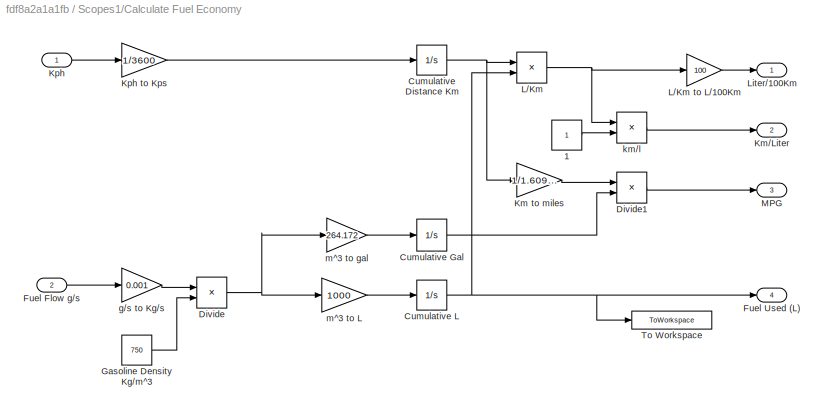
BLOCK [SubSystem] Scopes1/Calculate Fuel Economy
  Ports = [2, 4]
  RequestExecContextInheritance = off
BLOCK [Constant] Scopes1/Calculate Fuel Economy/1
BLOCK [Integrator] Scopes1/Calculate Fuel Economy/Cumulative Distance Km
  InitialCondition = eps
  Ports = [1, 1]
BLOCK [Integrator] Scopes1/Calculate Fuel Economy/Cumulative Gal
  InitialCondition = eps
  Ports = [1, 1]
BLOCK [Integrator] Scopes1/Calculate Fuel Economy/Cumulative L
  InitialCondition = eps
  Ports = [1, 1]
BLOCK [Product] Scopes1/Calculate Fuel Economy/Divide
  Inputs = */
  Ports = [2, 1]
BLOCK [Product] Scopes1/Calculate Fuel Economy/Divide1
  Inputs = */
  Ports = [2, 1]
BLOCK [Inport] Scopes1/Calculate Fuel Economy/Fuel Flow g//s
  Port = 2
BLOCK [Outport] Scopes1/Calculate Fuel Economy/Fuel Used (L)
  Port = 4
  VectorParamsAs1DForOutWhenUnconnected = off
BLOCK [Constant] Scopes1/Calculate Fuel Economy/Gasoline Density Kg//m^3
  Value = 750
BLOCK [Gain] Scopes1/Calculate Fuel Economy/Km to miles
  Gain = 1/1.609344
BLOCK [Outport] Scopes1/Calculate Fuel Economy/Km//Liter
  Port = 2
  VectorParamsAs1DForOutWhenUnconnected = off
BLOCK [Inport] Scopes1/Calculate Fuel Economy/Kph
BLOCK [Gain] Scopes1/Calculate Fuel Economy/Kph to Kps
  Gain = 1/3600
BLOCK [Product] Scopes1/Calculate Fuel Economy/L//Km
  Inputs = /*
  Ports = [2, 1]
BLOCK [Gain] Scopes1/Calculate Fuel Economy/L//Km to L//100Km
  Gain = 100
BLOCK [Outport] Scopes1/Calculate Fuel Economy/Liter//100Km
  VectorParamsAs1DForOutWhenUnconnected = off
BLOCK [Outport] Scopes1/Calculate Fuel Economy/MPG
  Port = 3
  VectorParamsAs1DForOutWhenUnconnected = off
BLOCK [ToWorkspace] Scopes1/Calculate Fuel Economy/To Workspace
  MaxDataPoints = 1
  Ports = [1]
  SampleTime = -1
  VariableName = FuelUsedLiters
BLOCK [Gain] Scopes1/Calculate Fuel Economy/g//s to Kg//s
  Gain = 0.001
BLOCK [Product] Scopes1/Calculate Fuel Economy/km//l
  Inputs = /*
  Ports = [2, 1]
BLOCK [Gain] Scopes1/Calculate Fuel Economy/m^3 to L
  Gain = 1000
BLOCK [Gain] Scopes1/Calculate Fuel Economy/m^3 to gal
  Gain = 264.172
BLOCK [From] Scopes1/From1
  GotoTag = VehSpd_kph
  TagVisibility = global
BLOCK [From] Scopes1/From6
  GotoTag = engine_speed
  TagVisibility = global
BLOCK [From] Scopes1/From7
  GotoTag = Carrier_Trq_Nm
  TagVisibility = global
BLOCK [Lookup2D] Scopes1/Fuel Consumption Table
  ColumnIndex = HEV_Param.ICE.FC.Torque_Vector
  InputSameDT = off
  RowIndex = HEV_Param.ICE.FC.Speed_Vector
  SaturateOnIntegerOverflow = off
  Table = HEV_Param.ICE.FC.Consumption_Table
BLOCK [Display] Scopes1/Total Fuel Used (L)
  Decimation = decimation
  Ports = [1]
BLOCK [Reference] Solver Configuration  REF=nesl_utility/Solver
Configuration
  NameLocation = top
  Ports = [0, 0, 0, 0, 0, 0, 1]
  SourceBlock = nesl_utility/Solver\nConfiguration
  SourceProductBaseCode = SS
  SourceType = Solver\nConfiguration
BLOCK [SubSystem] Speed Sensor
  NameLocation = right
  Ports = [0, 1, 0, 0, 0, 1]
  RequestExecContextInheritance = off
BLOCK [Reference] Speed Sensor/Ideal Rotational Motion Sensor  REF=fl_lib/Mechanical/Mechanical Sensors/Ideal Rotational
Motion Sensor
  Ports = [0, 0, 0, 0, 0, 1, 3]
  SourceBlock = fl_lib/Mechanical/Mechanical Sensors/Ideal Rotational\nMotion Sensor
  SourceProductBaseCode = SS
  SourceType = Ideal Rotational\nMotion Sensor
BLOCK [Reference] Speed Sensor/Mechanical Rotational Reference  REF=fl_lib/Mechanical/Rotational Elements/Mechanical
Rotational Reference
  NameLocation = top
  Ports = [0, 0, 0, 0, 0, 1]
  SourceBlock = fl_lib/Mechanical/Rotational Elements/Mechanical\nRotational Reference
  SourceProductBaseCode = SS
  SourceType = Mechanical\nRotational Reference
BLOCK [Reference] Speed Sensor/PS-Simulink Converter1  REF=nesl_utility/PS-Simulink
Converter
  Ports = [0, 1, 0, 0, 0, 1]
  SourceBlock = nesl_utility/PS-Simulink\nConverter
  SourceProductBaseCode = SS
  SourceType = PS-Simulink\nConverter
BLOCK [Outport] Speed Sensor/RPM
  VectorParamsAs1DForOutWhenUnconnected = off
BLOCK [SubSystem] Speed Sensor/Sensor Dynamics
  Ports = [1, 1]
  RequestExecContextInheritance = off
BLOCK [Gain] Speed Sensor/Sensor Dynamics/Gain
  Gain = 1/b
BLOCK [Inport] Speed Sensor/Sensor Dynamics/In
BLOCK [Integrator] Speed Sensor/Sensor Dynamics/Integrator
  InitialCondition = x_initial
  Ports = [1, 1]
BLOCK [Outport] Speed Sensor/Sensor Dynamics/Out
  VectorParamsAs1DForOutWhenUnconnected = off
BLOCK [Sum] Speed Sensor/Sensor Dynamics/Sum
  InputSameDT = on
  Inputs = |+-
  OutDataTypeStr = Inherit: Same as first input
  Ports = [2, 1]
  SaturateOnIntegerOverflow = on
BLOCK [PMIOPort] Speed Sensor/Shaft
  Side = Left
BLOCK [SubSystem] Vehicle Dynamics
  AttributesFormatString = %<ActiveVariant>
  BlockChoice = Simple
  LabelModeActiveChoice = Full
  Ports = [0, 1, 0, 0, 0, 1]
  RequestExecContextInheritance = off
  Variant = on
  VariantControlMode = Label
BLOCK [Reference] Vehicle Dynamics/Full  REF=HEV_Vehicle_Dynamics_Lib/Full
  Ports = [0, 1, 0, 0, 0, 1]
  SourceBlock = HEV_Vehicle_Dynamics_Lib/Full
BLOCK [PMIOPort] Vehicle Dynamics/Sh
  Side = Left
BLOCK [Reference] Vehicle Dynamics/Simple  REF=HEV_Vehicle_Dynamics_Lib/Simple
  Ports = [0, 1, 0, 0, 0, 1]
  SourceBlock = HEV_Vehicle_Dynamics_Lib/Simple
  SourceType = Rigid vehicle model
BLOCK [Outport] Vehicle Dynamics/VehSpd
  VectorParamsAs1DForOutWhenUnconnected = off
BLOCK [Scope] Vehicle Speed
  Floating = off
  NumInputPorts = 1
  Ports = [1]
  ScopeSpecificationString = Simulink.scopes.TimeScopeBlockCfg('CurrentConfiguration', extmgr.ConfigurationSet(extmgr.Configuration('Core','General UI',true,'FigureColor',[0.501960784313725 0.501960784313725 0.501960784313725]),extmgr.Configuration('Core','Source UI',true),extmgr.Configuration('Sources','WiredSimulink',true,'DataLoggingSaveFormat','StructureWithTime','DataLoggingDecimation','decimation','DataLoggingDecimateDa...<+2658ch>
BLOCK [Reference] powergui  REF=powerlib/powergui
  Ports = []
  SourceBlock = powerlib/powergui
  SourceProductBaseCode = PS
  SourceType = PSB option menu block
ANNOTATION (root): 1. Open Demo Script 2. Solver Settings: Desktop , Real Time 3. Explore simulation results using sscexplore Configure System ( default ) Electrical: System , Mean Value , Detailed Battery: Predefined , Generic , Cells Vehicle: Simple , Full
ANNOTATION (root): Hybrid Electric Vehicle, Series-Parallel
ANNOTATION Control/Engine Speed Controller: Engine speed controller. For demands below the idle speed of 800 rpm the speed demand is set to zero.
ANNOTATION Control/Generator Controller/Speed controller: This loop controls motor speed. The maximum value for V_wref is 5 volts, which is equivalent to a speed demand of 10000rpm.
ANNOTATION Control/Motor Controller: This loop controls motor speed. The maximum value for V_wref is 5 volts, which is equivalent to a speed demand of 6500rpm.
ANNOTATION Electrical: Variants of Electrical System
ANNOTATION Power Split Device: For port placement
ANNOTATION Scopes1: Fuel Economy
LINE Control/Acc:1 -> Control/Subsystem1:1
LINE Control/Battery Charge Controller/Allow 20% of available torque to be used to charge the battery:1 -> Control/Battery Charge Controller/Nm2Volts:1
LINE Control/Battery Charge Controller/Battery Ah:1 -> Control/Battery Charge Controller/If the battery has more than 100% rated capacity, then no generation is required. Linearly ramp to using 20% of engine torque for charging between 50% capacity and 100% capacity.:1
LINE Control/Battery Charge Controller/Engine RPM:1 -> Control/Battery Charge Controller/Inverse engine map:1
LINE Control/Battery Charge Controller/Engine-generator gear ratio:1 -> Control/Battery Charge Controller/Allow 20% of available torque to be used to charge the battery:1
LINE Control/Battery Charge Controller/If the battery has more than 100% rated capacity, then no generation is required. Linearly ramp to using 20% of engine torque for charging between 50% capacity and 100% capacity.:1 -> Control/Battery Charge Controller/Saturation Dynamic:2
LINE Control/Battery Charge Controller/Inverse engine map/Product1:1 -> Control/Battery Charge Controller/Inverse engine map/Sum2:2
LINE Control/Battery Charge Controller/Inverse engine map/Product:1 -> Control/Battery Charge Controller/Inverse engine map/Sum1:2
LINE Control/Battery Charge Controller/Inverse engine map/Sum1:1 -> Control/Battery Charge Controller/Inverse engine map/Sum2:1
LINE Control/Battery Charge Controller/Inverse engine map/Sum2:1 -> Control/Battery Charge Controller/Inverse engine map/Tmax:1
LINE Control/Battery Charge Controller/Inverse engine map/p1:1 -> Control/Battery Charge Controller/Inverse engine map/Sum1:1
LINE Control/Battery Charge Controller/Inverse engine map/p2:1 -> Control/Battery Charge Controller/Inverse engine map/Product:2
LINE Control/Battery Charge Controller/Inverse engine map/p3:1 -> Control/Battery Charge Controller/Inverse engine map/Product1:3
NET Control/Battery Charge Controller/Inverse engine map/rpm2rad//s:1 -> Control/Battery Charge Controller/Inverse engine map/Product1:1, Control/Battery Charge Controller/Inverse engine map/Product1:2, Control/Battery Charge Controller/Inverse engine map/Product:1
LINE Control/Battery Charge Controller/Inverse engine map/rpm:1 -> Control/Battery Charge Controller/Inverse engine map/rpm2rad//s:1
LINE Control/Battery Charge Controller/Inverse engine map:1 -> Control/Battery Charge Controller/Engine-generator gear ratio:1
LINE Control/Battery Charge Controller/Max:1 -> Control/Battery Charge Controller/Saturation Dynamic:1
LINE Control/Battery Charge Controller/Nm2Volts:1 -> Control/Battery Charge Controller/Saturation Dynamic:3
LINE Control/Battery Charge Controller/Saturation Dynamic:1 -> Control/Battery Charge Controller/Volts2Nm:1
NET Control/Battery Charge Controller/Volts2Nm:1 -> Control/Battery Charge Controller/Gen_Trq_Dem:1, Control/Battery Charge Controller/Goto6:1
LINE Control/Battery Charge Controller:1 -> Control/Generator Controller:4
LINE Control/Bus Selector1:1 -> Control/Generator Controller:5
LINE Control/Bus Selector2:1 -> Control/Motor Controller:3
NET Control/Bus Selector:1 -> Control/Battery Charge Controller:2, Control/Mode Logic:3
LINE Control/Constant:1 -> Control/Mode Logic:2
NET Control/Convert acceleration demand to engine speed demand.:1 -> Control/Engine Speed Controller:3, Control/Generator Controller:2
LINE Control/Convert acceleration demand to motor speed demand.:1 -> Control/Subsystem:1
LINE Control/ESys :1 -> Control/Bus Selector:1
LINE Control/Eng RPM:1 -> Control/Subsystem2:1
LINE Control/Engine Speed Controller/20Hz Lowpass Filter:1 -> Control/Engine Speed Controller/Sum:1
LINE Control/Engine Speed Controller/Engine Running/Alternate Logic/Allow time for engine to start:1 -> Control/Engine Speed Controller/Engine Running/Alternate Logic/No delay for engine stopping:1
LINE Control/Engine Speed Controller/Engine Running/Alternate Logic/No delay for engine stopping:1 -> Control/Engine Speed Controller/Engine Running/Alternate Logic/ICE Enable:1
LINE Control/Engine Speed Controller/Engine Running/Alternate Logic/RPM Dem:1 -> Control/Engine Speed Controller/Engine Running/Alternate Logic/Start engine:1
NET Control/Engine Speed Controller/Engine Running/Alternate Logic/Start engine:1 -> Control/Engine Speed Controller/Engine Running/Alternate Logic/Allow time for engine to start:1, Control/Engine Speed Controller/Engine Running/Alternate Logic/No delay for engine stopping:2
LINE Control/Engine Speed Controller/Engine Running/Alternate Logic:1 -> Control/Engine Speed Controller/Engine Running/Select Logic:1
LINE Control/Engine Speed Controller/Engine Running/ICE_Enable:1 -> Control/Engine Speed Controller/Engine Running/Select Logic:2
LINE Control/Engine Speed Controller/Engine Running/RPM_Dem:1 -> Control/Engine Speed Controller/Engine Running/Alternate Logic:1
NET Control/Engine Speed Controller/Engine Running/Select Logic:1 -> Control/Engine Speed Controller/Engine Running/Engine Running:1, Control/Engine Speed Controller/Engine Running/Goto2:1
NET Control/Engine Speed Controller/Engine Running:1 -> Control/Engine Speed Controller/Limits [0,1]:2, Control/Engine Speed Controller/Switch:2
LINE Control/Engine Speed Controller/Engine off:1 -> Control/Engine Speed Controller/Switch:3
LINE Control/Engine Speed Controller/ICE_Enable:1 -> Control/Engine Speed Controller/Engine Running:2
LINE Control/Engine Speed Controller/ICE_RPM:1 -> Control/Engine Speed Controller/20Hz Lowpass Filter:1
LINE Control/Engine Speed Controller/Ki:1 -> Control/Engine Speed Controller/Limits [0,1]:1
LINE Control/Engine Speed Controller/Kp:1 -> Control/Engine Speed Controller/Sum1:2
LINE Control/Engine Speed Controller/Limits [0,1]:1 -> Control/Engine Speed Controller/Sum1:1
NET Control/Engine Speed Controller/RPM_Dem:1 -> Control/Engine Speed Controller/Engine Running:1, Control/Engine Speed Controller/Switch:1
LINE Control/Engine Speed Controller/Sum1:1 -> Control/Engine Speed Controller/[0,1]:1
NET Control/Engine Speed Controller/Sum:1 -> Control/Engine Speed Controller/Ki:1, Control/Engine Speed Controller/Kp:1
NET Control/Engine Speed Controller/Switch:1 -> Control/Engine Speed Controller/Goto4:1, Control/Engine Speed Controller/Sum:2
NET Control/Engine Speed Controller/[0,1]:1 -> Control/Engine Speed Controller/Goto6:1, Control/Engine Speed Controller/Throttle:1
LINE Control/Engine Speed Controller:1 -> Control/Thr:1
LINE Control/From1:1 -> Control/Generator Controller:1
LINE Control/From2:1 -> Control/Motor Controller:1
LINE Control/From:1 -> Control/Sensor Dynamics:1
LINE Control/Gen RPM:1 -> Control/Bus Selector1:1
LINE Control/Generator Controller/Enable Torque Demand/20Hz Lowpass Filter:1 -> Control/Generator Controller/Enable Torque Demand/Product:1
LINE Control/Generator Controller/Enable Torque Demand/Gen_Enable:1 -> Control/Generator Controller/Enable Torque Demand/20Hz Lowpass Filter:1
LINE Control/Generator Controller/Enable Torque Demand/Product:1 -> Control/Generator Controller/Enable Torque Demand/Select Logic:1
LINE Control/Generator Controller/Enable Torque Demand/Select Logic:1 -> Control/Generator Controller/Enable Torque Demand/G_Trq_Dem:1
NET Control/Generator Controller/Enable Torque Demand/TrqDemCtrl:1 -> Control/Generator Controller/Enable Torque Demand/Product:2, Control/Generator Controller/Enable Torque Demand/Select Logic:2
LINE Control/Generator Controller/Enable Torque Demand:1 -> Control/Generator Controller/G_Trq_Dem:1
LINE Control/Generator Controller/Eng_RPM_Dem:1 -> Control/Generator Controller/Start Engine:1
LINE Control/Generator Controller/Eng_Start_RPM:1 -> Control/Generator Controller/Mux1:2
LINE Control/Generator Controller/From5:1 -> Control/Generator Controller/Torque or Speed Control:2
LINE Control/Generator Controller/Gen RPM:1 -> Control/Generator Controller/Speed controller:2
LINE Control/Generator Controller/Gen_Enable:1 -> Control/Generator Controller/Enable Torque Demand:1
LINE Control/Generator Controller/Limit to 800rpm in 1 second:1 -> Control/Generator Controller/Eng_Start_RPM:1
LINE Control/Generator Controller/Mot_RPM_Dem:1 -> Control/Generator Controller/Mux1:1
LINE Control/Generator Controller/Mux1:1 -> Control/Generator Controller/Set generator RPM so that engine RPM is controlled to zero or the idle speed:1
LINE Control/Generator Controller/Set generator RPM so that engine RPM is controlled to zero or the idle speed:1 -> Control/Generator Controller/Subsystem1:1
LINE Control/Generator Controller/Speed controller/20Hz Lowpass Filter:1 -> Control/Generator Controller/Speed controller/Sum:1
LINE Control/Generator Controller/Speed controller/From5:1 -> Control/Generator Controller/Speed controller/Limits [-5,5]:2
LINE Control/Generator Controller/Speed controller/Gen RPM to V:1 -> Control/Generator Controller/Speed controller/20Hz Lowpass Filter:1
LINE Control/Generator Controller/Speed controller/Ki:1 -> Control/Generator Controller/Speed controller/Limits [-5,5]:1
LINE Control/Generator Controller/Speed controller/Kp:1 -> Control/Generator Controller/Speed controller/Sum1:2
LINE Control/Generator Controller/Speed controller/Limits [-5,5]:1 -> Control/Generator Controller/Speed controller/Sum1:1
LINE Control/Generator Controller/Speed controller/Sum1:1 -> Control/Generator Controller/Speed controller/[-5,5]:1
NET Control/Generator Controller/Speed controller/Sum:1 -> Control/Generator Controller/Speed controller/Ki:1, Control/Generator Controller/Speed controller/Kp:1
LINE Control/Generator Controller/Speed controller/Volts//Nm:1 -> Control/Generator Controller/Speed controller/Tref:1
LINE Control/Generator Controller/Speed controller/W:1 -> Control/Generator Controller/Speed controller/Gen RPM to V:1
LINE Control/Generator Controller/Speed controller/Wref:1 -> Control/Generator Controller/Speed controller/rpm2volts:1
LINE Control/Generator Controller/Speed controller/[-5,5]:1 -> Control/Generator Controller/Speed controller/Volts//Nm:1
LINE Control/Generator Controller/Speed controller/rpm2volts:1 -> Control/Generator Controller/Speed controller/Sum:2
LINE Control/Generator Controller/Speed controller:1 -> Control/Generator Controller/Torque or Speed Control:3
LINE Control/Generator Controller/Start Engine:1 -> Control/Generator Controller/Limit to 800rpm in 1 second:1
NET Control/Generator Controller/Subsystem1/In1:1 -> Control/Generator Controller/Subsystem1/Gen_RPM_Dem:1, Control/Generator Controller/Subsystem1/Goto3:1
LINE Control/Generator Controller/Subsystem1:1 -> Control/Generator Controller/Speed controller:1
LINE Control/Generator Controller/Torque or Speed Control:1 -> Control/Generator Controller/Enable Torque Demand:2
LINE Control/Generator Controller/Trq Dem Battery:1 -> Control/Generator Controller/Torque or Speed Control:1
LINE Control/Generator Controller:1 -> Control/Gen_TReq:1
LINE Control/Mode Logic:1 -> Control/Goto:1
LINE Control/Mode Logic:2 -> Control/Goto1:1
LINE Control/Mode Logic:3 -> Control/Subsystem3:1
LINE Control/Mot RPM:1 -> Control/Bus Selector2:1
LINE Control/Motor Controller/20Hz Lowpass Filter:1 -> Control/Motor Controller/Sum:1
LINE Control/Motor Controller/Enable Torque Demand/20Hz Lowpass Filter:1 -> Control/Motor Controller/Enable Torque Demand/Product:1
LINE Control/Motor Controller/Enable Torque Demand/Mot_Enable:1 -> Control/Motor Controller/Enable Torque Demand/20Hz Lowpass Filter:1
LINE Control/Motor Controller/Enable Torque Demand/Product:1 -> Control/Motor Controller/Enable Torque Demand/Select Logic:1
LINE Control/Motor Controller/Enable Torque Demand/Select Logic:1 -> Control/Motor Controller/Enable Torque Demand/TrqDem:1
NET Control/Motor Controller/Enable Torque Demand/TrqDemCtrl:1 -> Control/Motor Controller/Enable Torque Demand/Product:2, Control/Motor Controller/Enable Torque Demand/Select Logic:2
LINE Control/Motor Controller/Enable Torque Demand:1 -> Control/Motor Controller/M_Trq_Dem:1
LINE Control/Motor Controller/Ki:1 -> Control/Motor Controller/Limits [-5,5]:1
LINE Control/Motor Controller/Kp:1 -> Control/Motor Controller/Sum1:2
LINE Control/Motor Controller/Limits [-5,5]:1 -> Control/Motor Controller/Sum1:1
LINE Control/Motor Controller/Mot RPM to V:1 -> Control/Motor Controller/20Hz Lowpass Filter:1
LINE Control/Motor Controller/Mot_Enable:1 -> Control/Motor Controller/Enable Torque Demand:1
LINE Control/Motor Controller/Mot_RPM:1 -> Control/Motor Controller/Mot RPM to V:1
LINE Control/Motor Controller/Mot_RPM_Dem:1 -> Control/Motor Controller/rpm2volts:1
LINE Control/Motor Controller/Sum1:1 -> Control/Motor Controller/[-5,5]:1
NET Control/Motor Controller/Sum:1 -> Control/Motor Controller/Ki:1, Control/Motor Controller/Kp:1
LINE Control/Motor Controller/Volts//Nm:1 -> Control/Motor Controller/Enable Torque Demand:2
LINE Control/Motor Controller/[-5,5]:1 -> Control/Motor Controller/Volts//Nm:1
LINE Control/Motor Controller/rpm2volts:1 -> Control/Motor Controller/Sum:2
LINE Control/Motor Controller:1 -> Control/Mot_TReq:1
NET Control/Sensor Dynamics/Gain:1 -> Control/Sensor Dynamics/Out:1, Control/Sensor Dynamics/Sum:2
LINE Control/Sensor Dynamics/In:1 -> Control/Sensor Dynamics/Sum:1
LINE Control/Sensor Dynamics/Integrator:1 -> Control/Sensor Dynamics/Gain:1
LINE Control/Sensor Dynamics/Sum:1 -> Control/Sensor Dynamics/Integrator:1
LINE Control/Sensor Dynamics:1 -> Control/Mode Logic:1
NET Control/Subsystem/In1:1 -> Control/Subsystem/Goto1:1, Control/Subsystem/Motor_RPM_Dem:1
NET Control/Subsystem1/In1:1 -> Control/Subsystem1/Accel:1, Control/Subsystem1/Goto1:1
NET Control/Subsystem1:1 -> Control/Convert acceleration demand to engine speed demand.:1, Control/Convert acceleration demand to motor speed demand.:1
NET Control/Subsystem2/In1:1 -> Control/Subsystem2/Eng_RPM_Meas:1, Control/Subsystem2/Goto5:1
NET Control/Subsystem2:1 -> Control/Battery Charge Controller:1, Control/Engine Speed Controller:2, Control/Mode Logic:4
NET Control/Subsystem3/In1:1 -> Control/Subsystem3/Gen_RPM_Dem:1, Control/Subsystem3/Goto3:1
LINE Control/Subsystem3:1 -> Control/Engine Speed Controller:1
NET Control/Subsystem:1 -> Control/Generator Controller:3, Control/Motor Controller:2
LINE Control:1 -> Electrical:1
LINE Control:2 -> Electrical:2
LINE Control:3 -> Engine:1
LINE Electrical:1 -> Control:1
LINE Engine/Sensor/Mux:1 -> Engine/Sensor/Goto:1
NET Engine/Sensor/PS-Simulink Converter1:1 -> Engine/Sensor/Product1:1, Engine/Sensor/Product:1
NET Engine/Sensor/PS-Simulink Converter:1 -> Engine/Sensor/Goto2:1, Engine/Sensor/Mux:2, Engine/Sensor/Product1:2
NET Engine/Sensor/Product1:1 -> Engine/Sensor/Goto1:1, Engine/Sensor/Mux:3
NET Engine/Sensor/Product:1 -> Engine/Sensor/Goto3:1, Engine/Sensor/Mux:1
LINE Engine/Sensor/rad//s to rpm:1 -> Engine/Sensor/Product:2
LINE Engine/Thr:1 -> Engine/Simulink-PS Converter:1
LINE Kph Demand/10-15 mode :1 -> Kph Demand/Multiport Switch:6
LINE Kph Demand/FTP75:1 -> Kph Demand/Multiport Switch:5
LINE Kph Demand/Multiport Switch:1 -> Kph Demand/Vehicle Speed Controller:1
LINE Kph Demand/Select Cycle:1 -> Kph Demand/Multiport Switch:1
LINE Kph Demand/Urban Cycle 1:1 -> Kph Demand/Multiport Switch:2
LINE Kph Demand/Urban Cycle 2:1 -> Kph Demand/Multiport Switch:3
LINE Kph Demand/Urban Cycle 3:1 -> Kph Demand/Multiport Switch:4
LINE Kph Demand/VehSpd:1 -> Kph Demand/Vehicle Speed Controller:2
LINE Kph Demand/Vehicle Speed Controller/20Hz Lowpass Filter:1 -> Kph Demand/Vehicle Speed Controller/Sum:1
LINE Kph Demand/Vehicle Speed Controller/Gain:1 -> Kph Demand/Vehicle Speed Controller/Goto:1
LINE Kph Demand/Vehicle Speed Controller/Ki:1 -> Kph Demand/Vehicle Speed Controller/Limits [-5,5]:1
LINE Kph Demand/Vehicle Speed Controller/Kp:1 -> Kph Demand/Vehicle Speed Controller/Sum1:2
NET Kph Demand/Vehicle Speed Controller/Limit Acc:1 -> Kph Demand/Vehicle Speed Controller/Acc:1, Kph Demand/Vehicle Speed Controller/Accel Ctrl:1
LINE Kph Demand/Vehicle Speed Controller/Limit Brk:1 -> Kph Demand/Vehicle Speed Controller/Gain:1
LINE Kph Demand/Vehicle Speed Controller/Limits [-5,5]:1 -> Kph Demand/Vehicle Speed Controller/Sum1:1
LINE Kph Demand/Vehicle Speed Controller/Mux:1 -> Kph Demand/Vehicle Speed Controller/Accel Ctrl:4
NET Kph Demand/Vehicle Speed Controller/Ref Spd:1 -> Kph Demand/Vehicle Speed Controller/Mux:1, Kph Demand/Vehicle Speed Controller/Sum:2
NET Kph Demand/Vehicle Speed Controller/Sum1:1 -> Kph Demand/Vehicle Speed Controller/Accel Ctrl:2, Kph Demand/Vehicle Speed Controller/Limit Acc:1, Kph Demand/Vehicle Speed Controller/Limit Brk:1
NET Kph Demand/Vehicle Speed Controller/Sum:1 -> Kph Demand/Vehicle Speed Controller/Accel Ctrl:3, Kph Demand/Vehicle Speed Controller/Ki:1, Kph Demand/Vehicle Speed Controller/Kp:1
NET Kph Demand/Vehicle Speed Controller/Veh Spd:1 -> Kph Demand/Vehicle Speed Controller/20Hz Lowpass Filter:1, Kph Demand/Vehicle Speed Controller/Mux:2
LINE Kph Demand/Vehicle Speed Controller:1 -> Kph Demand/Acc:1
LINE Kph Demand:1 -> Control:2
LINE Power Split Device/Constant:1 -> Power Split Device/Out1:1
LINE Power Split Device/Sensor Carrier Shaft/PS-Simulink Converter1:1 -> Power Split Device/Sensor Carrier Shaft/Goto:1
LINE Power Split Device/Sensor Carrier Shaft/PS-Simulink Converter:1 -> Power Split Device/Sensor Carrier Shaft/Goto1:1
LINE Power Split Device/Sensor Ring Shaft/PS-Simulink Converter1:1 -> Power Split Device/Sensor Ring Shaft/Goto:1
LINE Power Split Device/Sensor Ring Shaft/PS-Simulink Converter:1 -> Power Split Device/Sensor Ring Shaft/Goto1:1
LINE Power Split Device/Sensor Sun Shaft/PS-Simulink Converter1:1 -> Power Split Device/Sensor Sun Shaft/Goto:1
LINE Power Split Device/Sensor Sun Shaft/PS-Simulink Converter:1 -> Power Split Device/Sensor Sun Shaft/Goto1:1
LINE SLRT Scope/In1:1 -> SLRT Scope/Scope (SLRT) :1
LINE Scopes/Batt DCDC Scopes/From1:1 -> Scopes/Batt DCDC Scopes/DCDC Temp:1
LINE Scopes/Batt DCDC Scopes/From2:1 -> Scopes/Batt DCDC Scopes/Batt Cell Temp:1
LINE Scopes/Batt DCDC Scopes/From4:1 -> Scopes/Batt DCDC Scopes/Voltage:1
LINE Scopes/Batt DCDC Scopes/From5:1 -> Scopes/Batt DCDC Scopes/Voltage:2
LINE Scopes/Batt DCDC Scopes/From6:1 -> Scopes/Batt DCDC Scopes/Current:1
LINE Scopes/Batt DCDC Scopes/From7:1 -> Scopes/Batt DCDC Scopes/Current:2
LINE Scopes/Batt DCDC Scopes:1 -> Scopes/DC DC Temp:1
LINE Scopes/Batt DCDC Scopes:2 -> Scopes/Batt Cell Temp:1
LINE Scopes/Car Scopes/From14:1 -> Scopes/Car Scopes/Car:3
LINE Scopes/Car Scopes/From19:1 -> Scopes/Car Scopes/Car:2
LINE Scopes/Car Scopes/From20:1 -> Scopes/Car Scopes/Car:4
LINE Scopes/Car Scopes/From21:1 -> Scopes/Car Scopes/Car:1
LINE Scopes/Demux1:1 -> Scopes/Voltages:1
LINE Scopes/Demux1:2 -> Scopes/Voltages:2
LINE Scopes/Drivetrain Scopes/From11:1 -> Scopes/Drivetrain Scopes/Mux6:1
LINE Scopes/Drivetrain Scopes/From12:1 -> Scopes/Drivetrain Scopes/Mux6:2
LINE Scopes/Drivetrain Scopes/From1:1 -> Scopes/Drivetrain Scopes/Torque (Nm):1
LINE Scopes/Drivetrain Scopes/From2:1 -> Scopes/Drivetrain Scopes/Torque (Nm):2
LINE Scopes/Drivetrain Scopes/From3:1 -> Scopes/Drivetrain Scopes/Speed (rad//s):2
LINE Scopes/Drivetrain Scopes/From4:1 -> Scopes/Drivetrain Scopes/Speed (rad//s):3
LINE Scopes/Drivetrain Scopes/From5:1 -> Scopes/Drivetrain Scopes/Torque (Nm):3
LINE Scopes/Drivetrain Scopes/From:1 -> Scopes/Drivetrain Scopes/Speed (rad//s):1
LINE Scopes/Drivetrain Scopes/Mux6:1 -> Scopes/Drivetrain Scopes/Vehicle Data:1
NET Scopes/Electricals Scopes/From2:1 -> Scopes/Electricals Scopes/Selector6:1, Scopes/Electricals Scopes/Selector7:1, Scopes/Electricals Scopes/Selector8:1, Scopes/Electricals Scopes/Selector9:1
LINE Scopes/Electricals Scopes/Selector6:1 -> Scopes/Electricals Scopes/Electricals:1
NET Scopes/Electricals Scopes/Selector7:1 -> Scopes/Electricals Scopes/Electricals:2, Scopes/Electricals Scopes/V:1
LINE Scopes/Electricals Scopes/Selector8:1 -> Scopes/Electricals Scopes/Electricals:3
NET Scopes/Electricals Scopes/Selector9:1 -> Scopes/Electricals Scopes/Electricals:4, Scopes/Electricals Scopes/Goto:1
LINE Scopes/Electricals Scopes:1 -> Scopes/Demux1:1
LINE Scopes/ICE Scopes/Demux:1 -> Scopes/ICE Scopes/ICE:1
LINE Scopes/ICE Scopes/Demux:2 -> Scopes/ICE Scopes/ICE:2
LINE Scopes/ICE Scopes/Demux:3 -> Scopes/ICE Scopes/ICE:3
LINE Scopes/ICE Scopes/From3:1 -> Scopes/ICE Scopes/Demux:1
LINE Scopes/ICE Scopes/From4:1 -> Scopes/ICE Scopes/ICE:4
LINE Scopes/Mode Logic/From5:1 -> Scopes/Mode Logic/Mux5:1
LINE Scopes/Mode Logic/From6:1 -> Scopes/Mode Logic/Mux5:2
LINE Scopes/Mode Logic/From7:1 -> Scopes/Mode Logic/Check State Logic:2
LINE Scopes/Mode Logic/From8:1 -> Scopes/Mode Logic/Check State Logic:3
LINE Scopes/Mode Logic/Mux5:1 -> Scopes/Mode Logic/Check State Logic:1
LINE Scopes/Motor Generator Scopes/Control Scopes/From10:1 -> Scopes/Motor Generator Scopes/Control Scopes/Mux2:1
LINE Scopes/Motor Generator Scopes/Control Scopes/From13:1 -> Scopes/Motor Generator Scopes/Control Scopes/Mux1:1
LINE Scopes/Motor Generator Scopes/Control Scopes/From15:1 -> Scopes/Motor Generator Scopes/Control Scopes/Mux3:1
LINE Scopes/Motor Generator Scopes/Control Scopes/From16:1 -> Scopes/Motor Generator Scopes/Control Scopes/Mux3:2
LINE Scopes/Motor Generator Scopes/Control Scopes/From17:1 -> Scopes/Motor Generator Scopes/Control Scopes/Mux4:1
LINE Scopes/Motor Generator Scopes/Control Scopes/From18:1 -> Scopes/Motor Generator Scopes/Control Scopes/Mux4:2
LINE Scopes/Motor Generator Scopes/Control Scopes/From9:1 -> Scopes/Motor Generator Scopes/Control Scopes/Closed-loop control:5
LINE Scopes/Motor Generator Scopes/Control Scopes/In1:1 -> Scopes/Motor Generator Scopes/Control Scopes/Mux2:2
LINE Scopes/Motor Generator Scopes/Control Scopes/In2:1 -> Scopes/Motor Generator Scopes/Control Scopes/Mux1:2
LINE Scopes/Motor Generator Scopes/Control Scopes/Mux1:1 -> Scopes/Motor Generator Scopes/Control Scopes/Closed-loop control:2
LINE Scopes/Motor Generator Scopes/Control Scopes/Mux2:1 -> Scopes/Motor Generator Scopes/Control Scopes/Closed-loop control:1
LINE Scopes/Motor Generator Scopes/Control Scopes/Mux3:1 -> Scopes/Motor Generator Scopes/Control Scopes/Closed-loop control:3
LINE Scopes/Motor Generator Scopes/Control Scopes/Mux4:1 -> Scopes/Motor Generator Scopes/Control Scopes/Closed-loop control:4
NET Scopes/Motor Generator Scopes/From1:1 -> Scopes/Motor Generator Scopes/Selector3:1, Scopes/Motor Generator Scopes/Selector4:1, Scopes/Motor Generator Scopes/Selector5:1
NET Scopes/Motor Generator Scopes/From:1 -> Scopes/Motor Generator Scopes/Selector1:1, Scopes/Motor Generator Scopes/Selector2:1, Scopes/Motor Generator Scopes/Selector:1
NET Scopes/Motor Generator Scopes/Selector1:1 -> Scopes/Motor Generator Scopes/Control Scopes:1, Scopes/Motor Generator Scopes/M:1, Scopes/Motor Generator Scopes/PMSM Motor Drive:2
LINE Scopes/Motor Generator Scopes/Selector2:1 -> Scopes/Motor Generator Scopes/PMSM Motor Drive:3
LINE Scopes/Motor Generator Scopes/Selector3:1 -> Scopes/Motor Generator Scopes/PMSM Generator Drive:1
NET Scopes/Motor Generator Scopes/Selector4:1 -> Scopes/Motor Generator Scopes/Control Scopes:2, Scopes/Motor Generator Scopes/G:1, Scopes/Motor Generator Scopes/PMSM Generator Drive:2
LINE Scopes/Motor Generator Scopes/Selector5:1 -> Scopes/Motor Generator Scopes/PMSM Generator Drive:3
LINE Scopes/Motor Generator Scopes/Selector:1 -> Scopes/Motor Generator Scopes/PMSM Motor Drive:1
LINE Scopes/Motor Generator Scopes:1 -> Scopes/Speeds (RPM):1
LINE Scopes/Motor Generator Scopes:2 -> Scopes/Speeds (RPM):2
LINE Scopes1/Calculate Fuel Economy/1:1 -> Scopes1/Calculate Fuel Economy/km//l:2
NET Scopes1/Calculate Fuel Economy/Cumulative Distance Km:1 -> Scopes1/Calculate Fuel Economy/Km to miles:1, Scopes1/Calculate Fuel Economy/L//Km:1
LINE Scopes1/Calculate Fuel Economy/Cumulative Gal:1 -> Scopes1/Calculate Fuel Economy/Divide1:2
NET Scopes1/Calculate Fuel Economy/Cumulative L:1 -> Scopes1/Calculate Fuel Economy/Fuel Used (L):1, Scopes1/Calculate Fuel Economy/L//Km:2, Scopes1/Calculate Fuel Economy/To Workspace:1
LINE Scopes1/Calculate Fuel Economy/Divide1:1 -> Scopes1/Calculate Fuel Economy/MPG:1
NET Scopes1/Calculate Fuel Economy/Divide:1 -> Scopes1/Calculate Fuel Economy/m^3 to L:1, Scopes1/Calculate Fuel Economy/m^3 to gal:1
LINE Scopes1/Calculate Fuel Economy/Fuel Flow g//s:1 -> Scopes1/Calculate Fuel Economy/g//s to Kg//s:1
LINE Scopes1/Calculate Fuel Economy/Gasoline Density Kg//m^3:1 -> Scopes1/Calculate Fuel Economy/Divide:2
LINE Scopes1/Calculate Fuel Economy/Km to miles:1 -> Scopes1/Calculate Fuel Economy/Divide1:1
LINE Scopes1/Calculate Fuel Economy/Kph to Kps:1 -> Scopes1/Calculate Fuel Economy/Cumulative Distance Km:1
LINE Scopes1/Calculate Fuel Economy/Kph:1 -> Scopes1/Calculate Fuel Economy/Kph to Kps:1
LINE Scopes1/Calculate Fuel Economy/L//Km to L//100Km:1 -> Scopes1/Calculate Fuel Economy/Liter//100Km:1
NET Scopes1/Calculate Fuel Economy/L//Km:1 -> Scopes1/Calculate Fuel Economy/L//Km to L//100Km:1, Scopes1/Calculate Fuel Economy/km//l:1
LINE Scopes1/Calculate Fuel Economy/g//s to Kg//s:1 -> Scopes1/Calculate Fuel Economy/Divide:1
LINE Scopes1/Calculate Fuel Economy/km//l:1 -> Scopes1/Calculate Fuel Economy/Km//Liter:1
LINE Scopes1/Calculate Fuel Economy/m^3 to L:1 -> Scopes1/Calculate Fuel Economy/Cumulative L:1
LINE Scopes1/Calculate Fuel Economy/m^3 to gal:1 -> Scopes1/Calculate Fuel Economy/Cumulative Gal:1
LINE Scopes1/Calculate Fuel Economy:1 -> Scopes1/(L//100 km):1
LINE Scopes1/Calculate Fuel Economy:2 -> Scopes1/(km//L):1
LINE Scopes1/Calculate Fuel Economy:3 -> Scopes1/(MPG):1
LINE Scopes1/Calculate Fuel Economy:4 -> Scopes1/Total Fuel Used (L):1
LINE Scopes1/From1:1 -> Scopes1/Calculate Fuel Economy:1
LINE Scopes1/From6:1 -> Scopes1/Fuel Consumption Table:1
LINE Scopes1/From7:1 -> Scopes1/Fuel Consumption Table:2
LINE Scopes1/Fuel Consumption Table:1 -> Scopes1/Calculate Fuel Economy:2
LINE Speed Sensor/PS-Simulink Converter1:1 -> Speed Sensor/Sensor Dynamics:1
NET Speed Sensor/Sensor Dynamics/Gain:1 -> Speed Sensor/Sensor Dynamics/Out:1, Speed Sensor/Sensor Dynamics/Sum:2
LINE Speed Sensor/Sensor Dynamics/In:1 -> Speed Sensor/Sensor Dynamics/Sum:1
LINE Speed Sensor/Sensor Dynamics/Integrator:1 -> Speed Sensor/Sensor Dynamics/Gain:1
LINE Speed Sensor/Sensor Dynamics/Sum:1 -> Speed Sensor/Sensor Dynamics/Integrator:1
LINE Speed Sensor/Sensor Dynamics:1 -> Speed Sensor/RPM:1
LINE Speed Sensor:1 -> Control:3
NET Vehicle Dynamics:1 -> Goto:1, Out1:1, SLRT Scope:1, Vehicle Speed:1
PNET net1: Electrical:RConn1 -- Power Split Device:RConn2 -- Vehicle Dynamics:LConn1
PLINE Electrical:RConn2 -- Power Split Device:RConn1
PNET net2: Engine/Engine Shaft Inertia:LConn1 -- Engine/Generic Engine:RConn3 -- Engine/Rotational Damper:LConn1 -- Engine/Sensor:LConn1
PLINE Engine/Generic Engine:LConn1 -- Engine/Simulink-PS Converter:RConn1
PLINE Engine/Generic Engine:LConn2 -- Engine/MRRef Engine Housing:LConn1
PLINE Engine/MRRef Engine Shaft:LConn1 -- Engine/Rotational Damper:RConn1
PNET net3: Engine/Sensor/Engine:RConn1 -- Engine/Sensor/Ideal Rotational Motion Sensor:LConn1 -- Engine/Sensor/Ideal Torque Sensor:LConn1
PLINE Engine/Sensor/Ideal Rotational Motion Sensor:RConn1 -- Engine/Sensor/Mechanical Rotational Reference:LConn1
PLINE Engine/Sensor/Ideal Rotational Motion Sensor:RConn2 -- Engine/Sensor/PS-Simulink Converter1:LConn1
PLINE Engine/Sensor/Ideal Torque Sensor:RConn1 -- Engine/Sensor/Trans:RConn1
PLINE Engine/Sensor/Ideal Torque Sensor:RConn2 -- Engine/Sensor/PS-Simulink Converter:LConn1
PLINE Engine/Sensor:RConn1 -- Engine/Sh:RConn1
PNET net4: Engine:RConn1 -- Power Split Device:LConn1 -- Solver Configuration:RConn1 -- Speed Sensor:LConn1
PLINE Power Split Device/C:RConn1 -- Power Split Device/Sensor Carrier Shaft:LConn1
PLINE Power Split Device/Planetary Gear:LConn1 -- Power Split Device/Sensor Carrier Shaft:RConn1
PLINE Power Split Device/Planetary Gear:RConn1 -- Power Split Device/Sensor Ring Shaft:LConn1
PLINE Power Split Device/Planetary Gear:RConn2 -- Power Split Device/Sensor Sun Shaft:LConn1
PLINE Power Split Device/R:RConn1 -- Power Split Device/Sensor Ring Shaft:RConn1
PLINE Power Split Device/S:RConn1 -- Power Split Device/Sensor Sun Shaft:RConn1
PLINE Power Split Device/Sensor Carrier Shaft/Ideal Rotational Motion Sensor:LConn1 -- Power Split Device/Sensor Carrier Shaft/Mechanical Rotational Reference:LConn1
PNET net5: Power Split Device/Sensor Carrier Shaft/Ideal Rotational Motion Sensor:RConn1 -- Power Split Device/Sensor Carrier Shaft/Ideal Torque Sensor:RConn1 -- Power Split Device/Sensor Carrier Shaft/PG:RConn1
PLINE Power Split Device/Sensor Carrier Shaft/Ideal Rotational Motion Sensor:RConn2 -- Power Split Device/Sensor Carrier Shaft/PS-Simulink Converter1:LConn1
PLINE Power Split Device/Sensor Carrier Shaft/Ideal Torque Sensor:LConn1 -- Power Split Device/Sensor Carrier Shaft/Sh:RConn1
PLINE Power Split Device/Sensor Carrier Shaft/Ideal Torque Sensor:RConn2 -- Power Split Device/Sensor Carrier Shaft/PS-Simulink Converter:LConn1
PLINE Power Split Device/Sensor Ring Shaft/Ideal Rotational Motion Sensor:LConn1 -- Power Split Device/Sensor Ring Shaft/Mechanical Rotational Reference:LConn1
PNET net6: Power Split Device/Sensor Ring Shaft/Ideal Rotational Motion Sensor:RConn1 -- Power Split Device/Sensor Ring Shaft/Ideal Torque Sensor:RConn1 -- Power Split Device/Sensor Ring Shaft/PG:RConn1
PLINE Power Split Device/Sensor Ring Shaft/Ideal Rotational Motion Sensor:RConn2 -- Power Split Device/Sensor Ring Shaft/PS-Simulink Converter1:LConn1
PLINE Power Split Device/Sensor Ring Shaft/Ideal Torque Sensor:LConn1 -- Power Split Device/Sensor Ring Shaft/Sh:RConn1
PLINE Power Split Device/Sensor Ring Shaft/Ideal Torque Sensor:RConn2 -- Power Split Device/Sensor Ring Shaft/PS-Simulink Converter:LConn1
PLINE Power Split Device/Sensor Sun Shaft/Ideal Rotational Motion Sensor:LConn1 -- Power Split Device/Sensor Sun Shaft/Mechanical Rotational Reference:LConn1
PNET net7: Power Split Device/Sensor Sun Shaft/Ideal Rotational Motion Sensor:RConn1 -- Power Split Device/Sensor Sun Shaft/Ideal Torque Sensor:RConn1 -- Power Split Device/Sensor Sun Shaft/PG:RConn1
PLINE Power Split Device/Sensor Sun Shaft/Ideal Rotational Motion Sensor:RConn2 -- Power Split Device/Sensor Sun Shaft/PS-Simulink Converter1:LConn1
PLINE Power Split Device/Sensor Sun Shaft/Ideal Torque Sensor:LConn1 -- Power Split Device/Sensor Sun Shaft/Sh:RConn1
PLINE Power Split Device/Sensor Sun Shaft/Ideal Torque Sensor:RConn2 -- Power Split Device/Sensor Sun Shaft/PS-Simulink Converter:LConn1
PLINE Speed Sensor/Ideal Rotational Motion Sensor:LConn1 -- Speed Sensor/Shaft:RConn1
PLINE Speed Sensor/Ideal Rotational Motion Sensor:RConn1 -- Speed Sensor/Mechanical Rotational Reference:LConn1
PLINE Speed Sensor/Ideal Rotational Motion Sensor:RConn2 -- Speed Sensor/PS-Simulink Converter1:LConn1
note: NET lines group one-source signal fan-out (src -> all destinations, sorted); 1:1 wires keep LINE; PNET lines group multi-terminal physical nets as a canonical sorted terminal list (undirected conserving connections); 2-terminal nets keep the pairwise PLINE form
CHART Control/Mode Logic states=9 transitions=12
  STATE_LABEL 'Motion_mode'
  STATE_LABEL 'Start_mode\nentry: Gen_Enable=1;\n           Mot_Enable=1;\n           ICE_Enable=0;'
  STATE_LABEL 'Normal_mode\nentry: ICE_Enable=1;'
  STATE_LABEL 'Accelerate_mode\nentry: Gen_Enable=0;\n          Mot_Enable=1;'
  STATE_LABEL 'Cruise_mode\nentry: Mot_Enable=1;'
  STATE_LABEL 'charge\nentry:Gen_Enable=1;'
  STATE_LABEL 'nocharge\nentry:Gen_Enable=0;'
  STATE_LABEL '[charge>99.9]'
  STATE_LABEL '[charge<30]'
  STATE_LABEL 'y = oldspeed'
  STATE_LABEL 'SCRIPT:\nfunction y = oldspeed\nspeed_buffer(2:end) = speed_buffer(1:end-1);\nspeed_buffer(1) = speed;\ny = mean(speed_buffer);'
  STATE_LABEL '[(speed <0.998*oldspeed() ...\n|| speed>1.002*oldspeed()) ...\n&& charge>30]'
  STATE_LABEL '[(speed >0.998*oldspeed() ...\n && speed<1.002* ...\noldspeed())|| charge<=30]'
  STATE_LABEL '[engine_speed<=EngOffRPM]'
  STATE_LABEL '[engine_speed>EngOnRPM]'
  STATE_LABEL 'Start_mode\nentry: Gen_Enable=1;\n           Mot_Enable=1;\n           ICE_Enable=0;'
  STATE_LABEL 'Normal_mode\nentry: ICE_Enable=1;'
  STATE_LABEL 'Accelerate_mode\nentry: Gen_Enable=0;\n          Mot_Enable=1;'
  STATE_LABEL 'Cruise_mode\nentry: Mot_Enable=1;'
  STATE_LABEL 'charge\nentry:Gen_Enable=1;'
  STATE_LABEL 'nocharge\nentry:Gen_Enable=0;'
  STATE_LABEL '[charge>99.9]'
  STATE_LABEL '[charge<30]'
  STATE_LABEL 'y = oldspeed'
  STATE_LABEL 'SCRIPT:\nfunction y = oldspeed\nspeed_buffer(2:end) = speed_buffer(1:end-1);\nspeed_buffer(1) = speed;\ny = mean(speed_buffer);'
  STATE_LABEL '[(speed <0.998*oldspeed() ...\n|| speed>1.002*oldspeed()) ...\n&& charge>30]'
  STATE_LABEL '[(speed >0.998*oldspeed() ...\n && speed<1.002* ...\noldspeed())|| charge<=30]'
  STATE_LABEL 'Accelerate_mode\nentry: Gen_Enable=0;\n          Mot_Enable=1;'
  STATE_LABEL 'Cruise_mode\nentry: Mot_Enable=1;'
  STATE_LABEL 'charge\nentry:Gen_Enable=1;'
  STATE_LABEL 'nocharge\nentry:Gen_Enable=0;'
  STATE_LABEL '[charge>99.9]'
  STATE_LABEL '[charge<30]'
  STATE_LABEL 'charge\nentry:Gen_Enable=1;'
  STATE_LABEL 'nocharge\nentry:Gen_Enable=0;'
  STATE_LABEL 'y = oldspeed'
  STATE_LABEL 'SCRIPT:\nfunction y = oldspeed\nspeed_buffer(2:end) = speed_buffer(1:end-1);\nspeed_buffer(1) = speed;\ny = mean(speed_buffer);'
  STATE_LABEL 'Brake_mode\nentry: Mot_Enable=1;\n           Gen_Enable=0;\n           ICE_Enable=0;'
CHART  states=0 transitions=0
